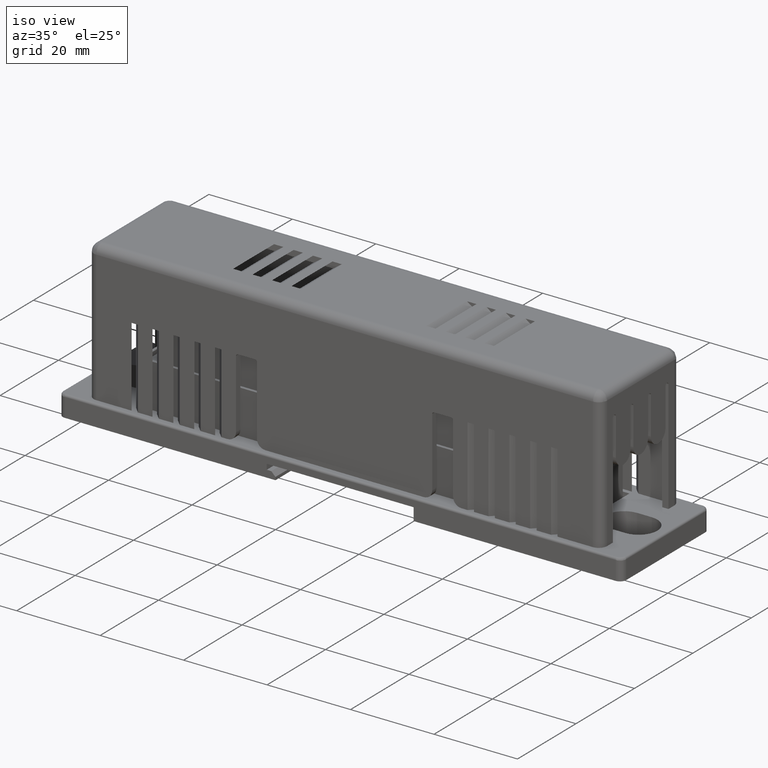
[diagram: clean part render]
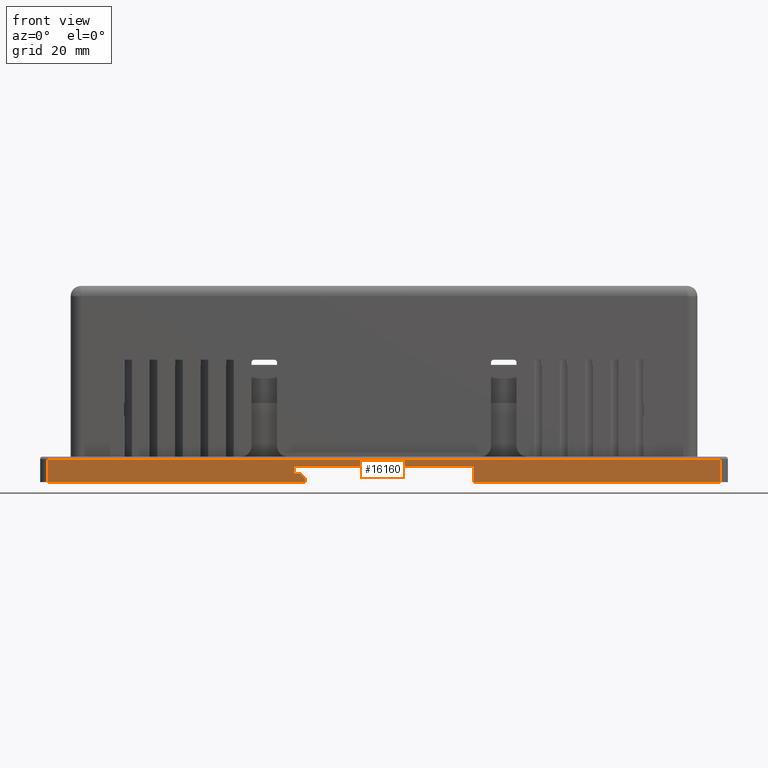
[diagram: tour spotlight — one face highlighted and labeled with its STEP entity id]
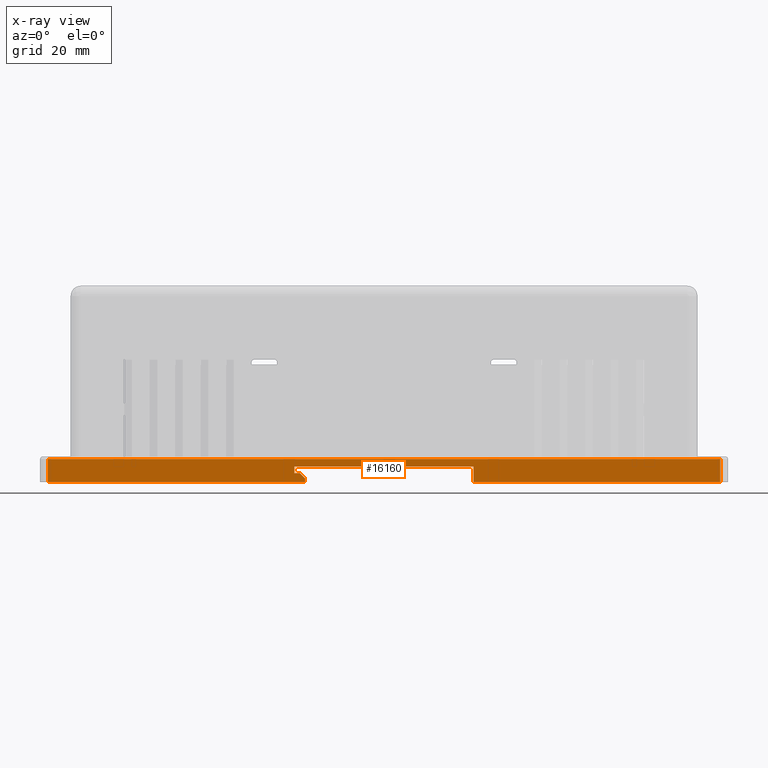
[diagram: x-ray of the same camera — body ghosted, this tour face saturated]
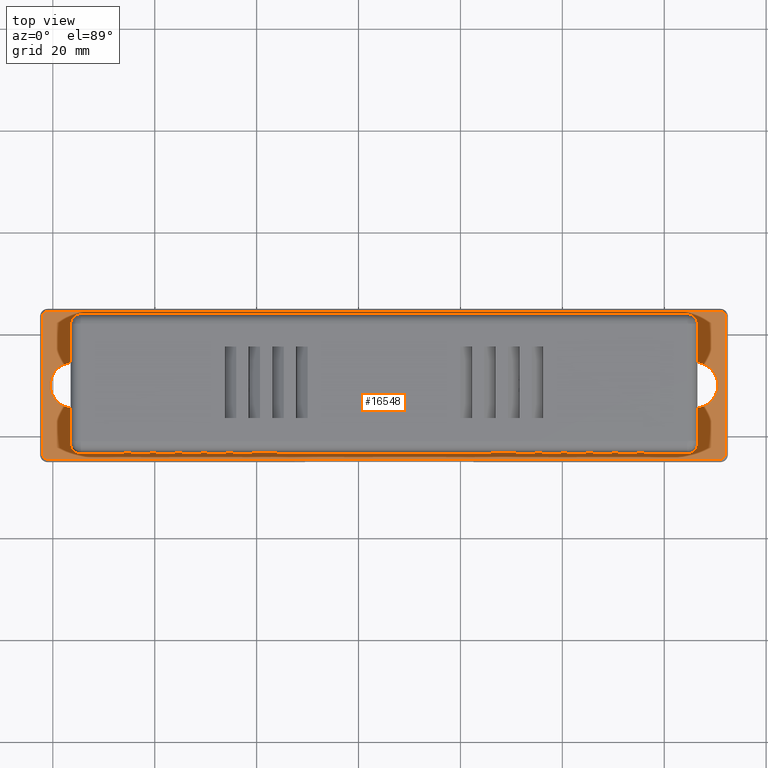
[diagram: tour spotlight — one face highlighted and labeled with its STEP entity id]
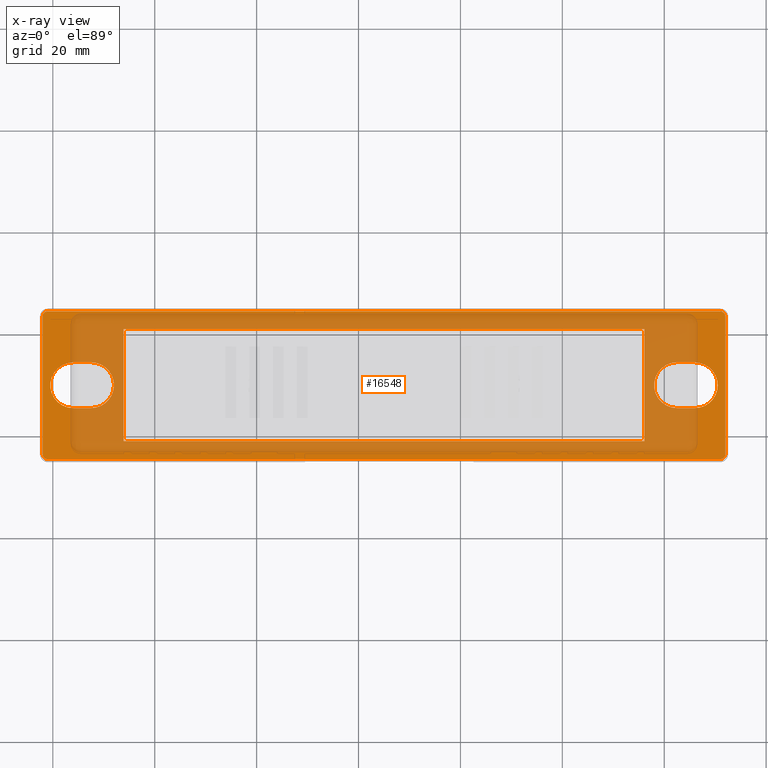
[diagram: x-ray of the same camera — body ghosted, this tour face saturated]
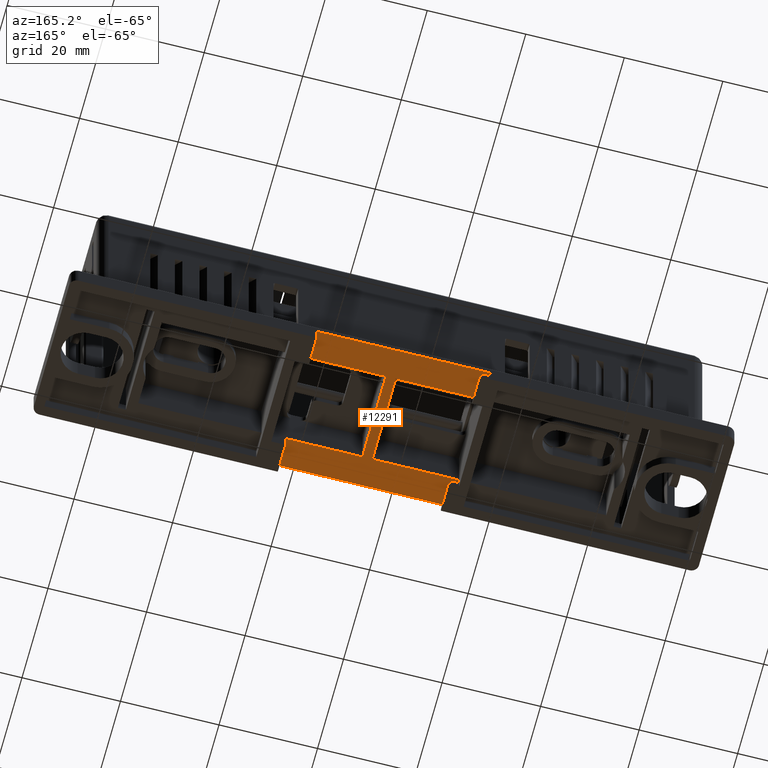
[diagram: tour spotlight — one face highlighted and labeled with its STEP entity id]
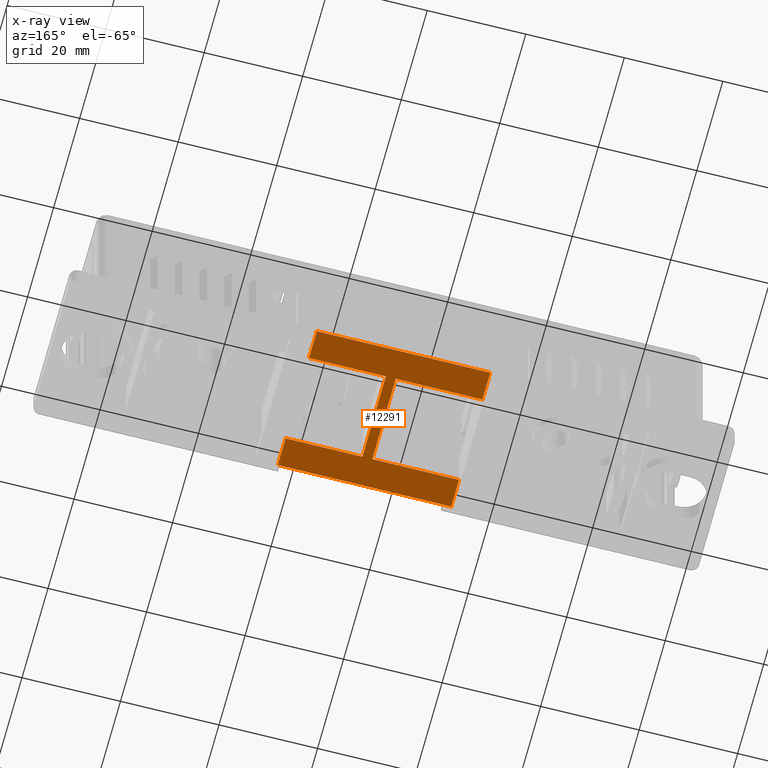
[diagram: x-ray of the same camera — body ghosted, this tour face saturated]
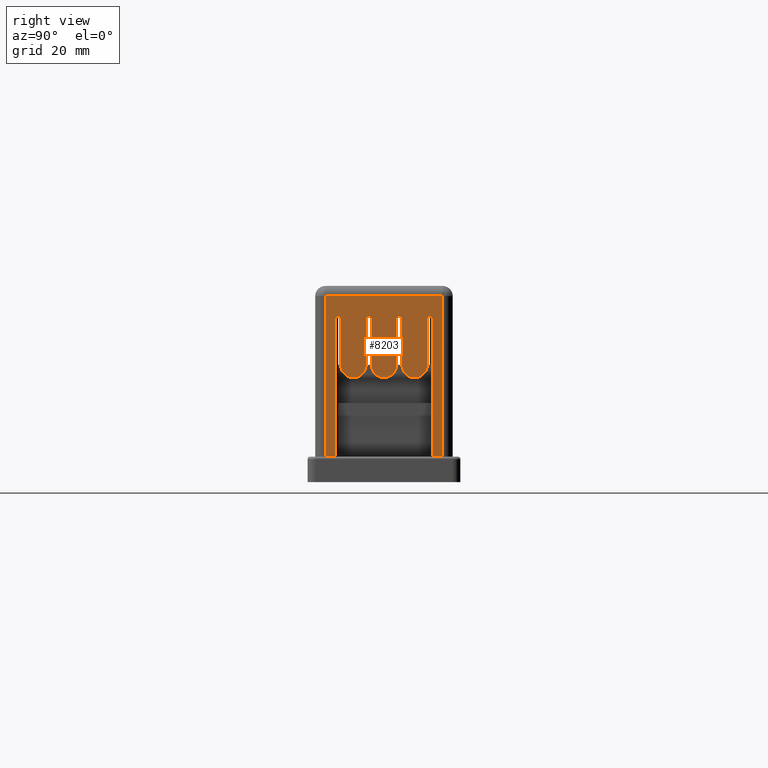
[diagram: tour spotlight — one face highlighted and labeled with its STEP entity id]
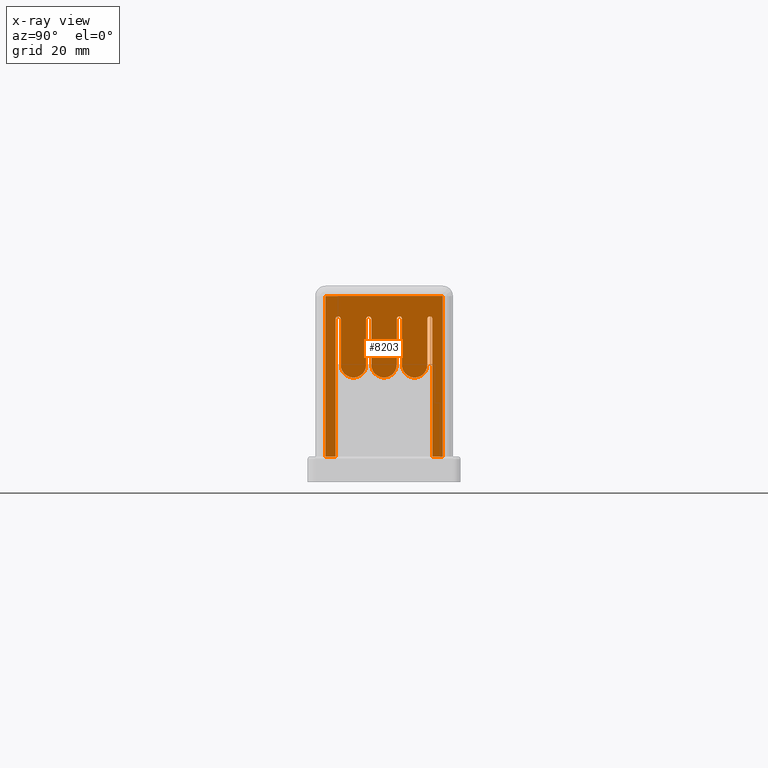
[diagram: x-ray of the same camera — body ghosted, this tour face saturated]
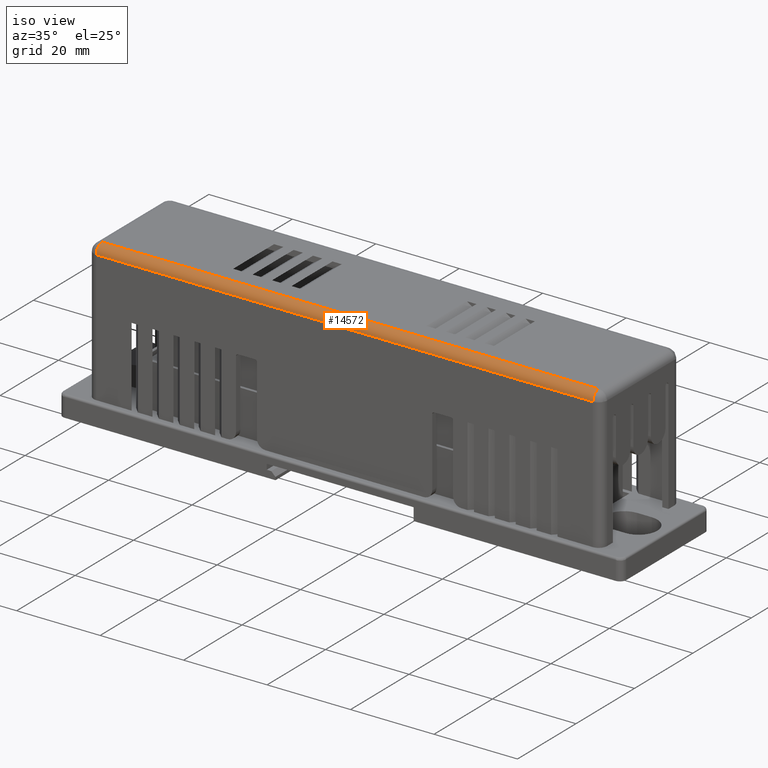
[diagram: tour spotlight — one face highlighted and labeled with its STEP entity id]
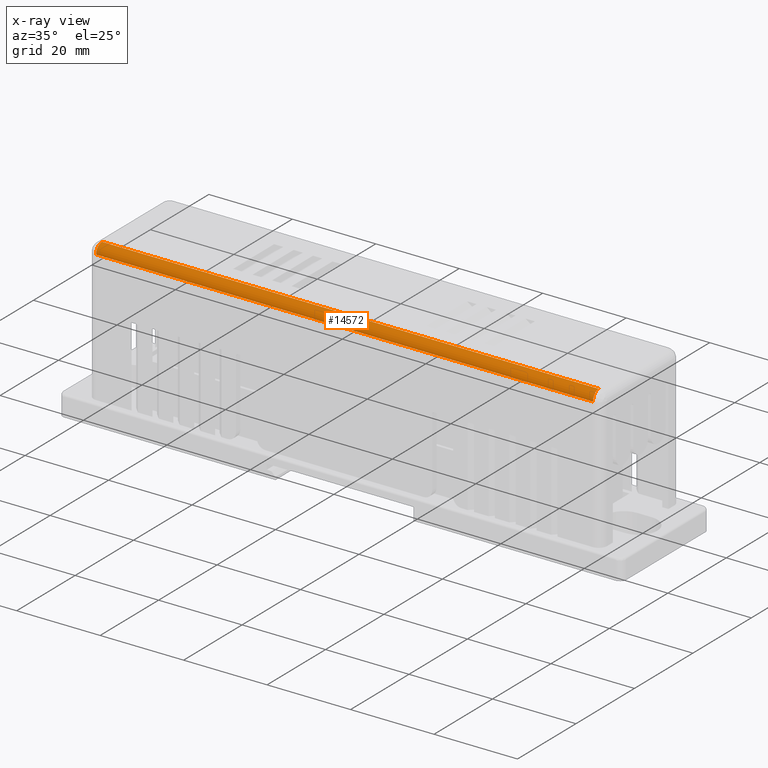
[diagram: x-ray of the same camera — body ghosted, this tour face saturated]
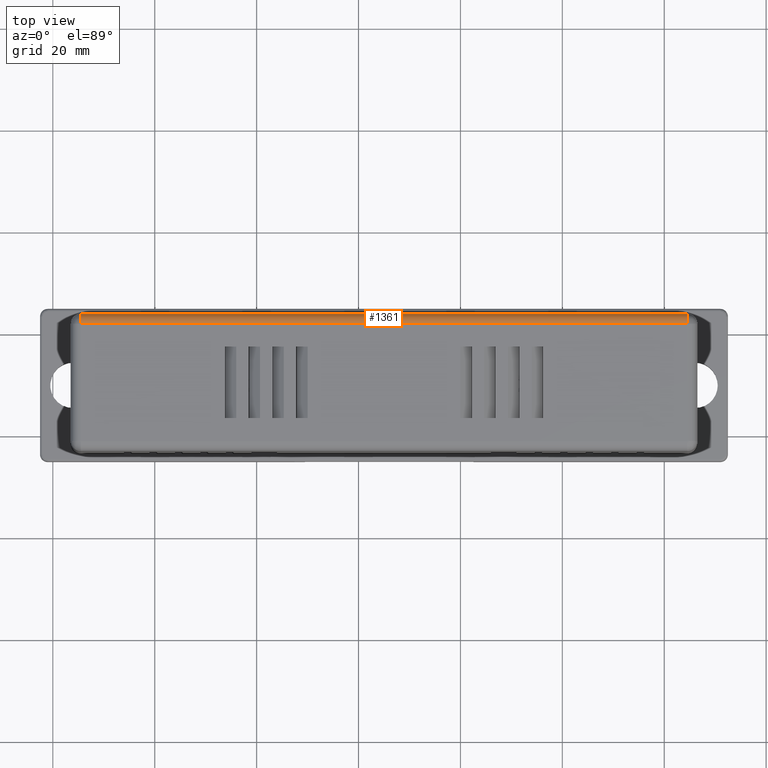
[diagram: tour spotlight — one face highlighted and labeled with its STEP entity id]
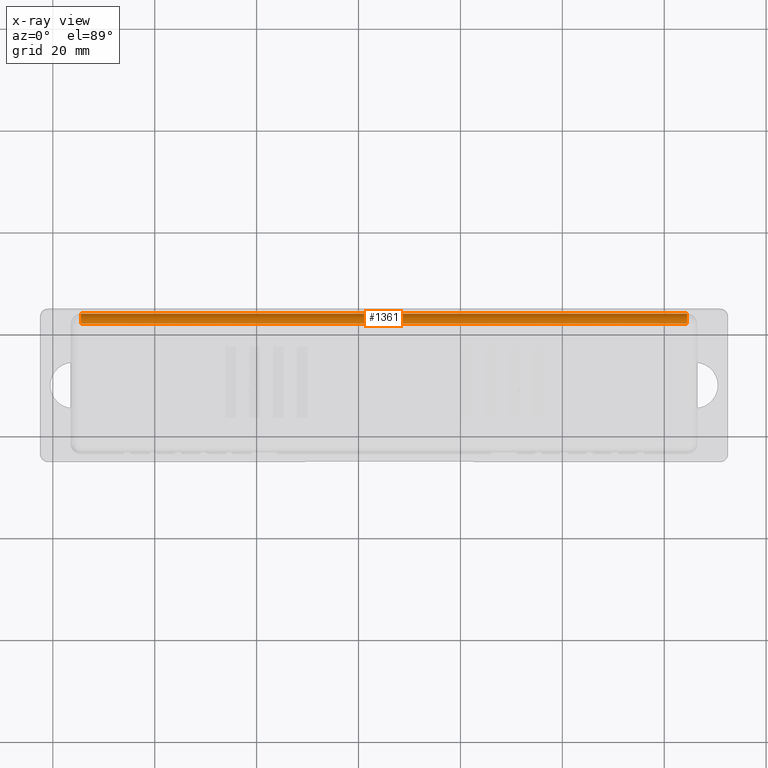
[diagram: x-ray of the same camera — body ghosted, this tour face saturated]
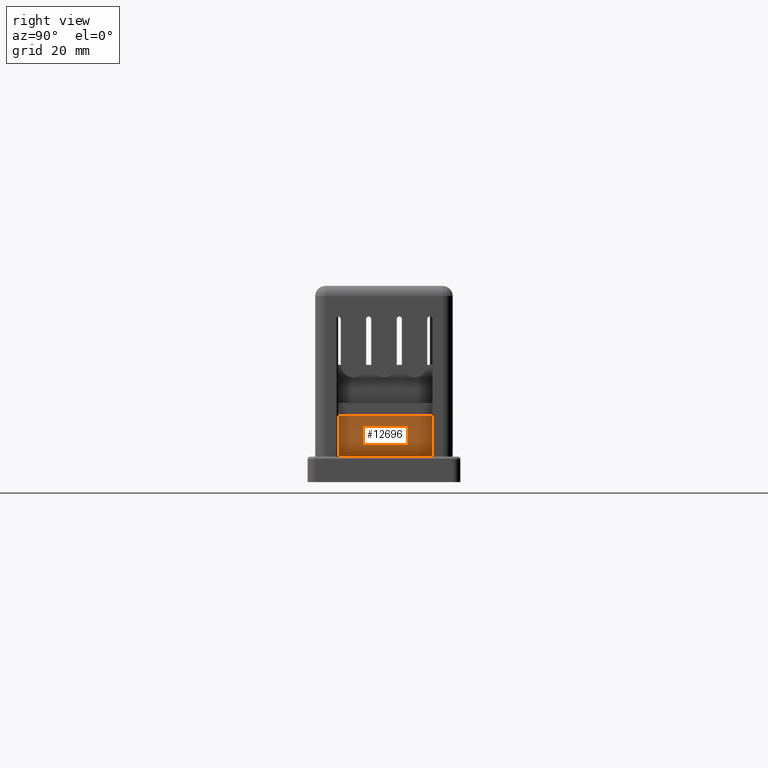
[diagram: tour spotlight — one face highlighted and labeled with its STEP entity id]
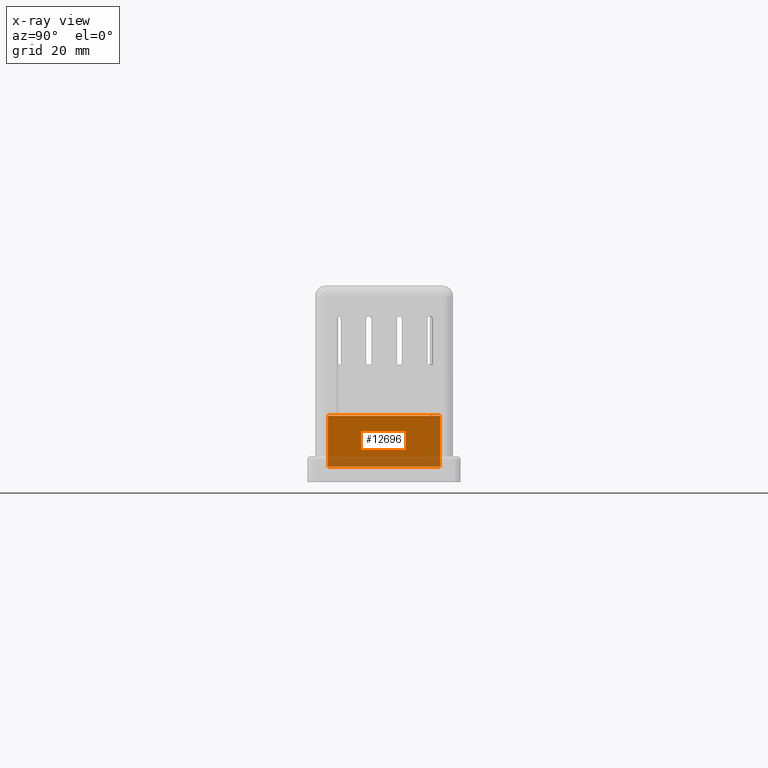
[diagram: x-ray of the same camera — body ghosted, this tour face saturated]
A machine part: a face-by-face anatomy tour. The part has 505 B-rep faces; the first image is the clean iso view, then the 7 largest visible faces are spotlighted one at a time (largest first), each with its STEP entity span.

Face 1 — front view, entity #16160. An x-ray twin of the same camera follows (body ghosted, this face saturated) — the face is partly hidden behind the body. In plain terms, the highlighted planar face has unit normal (0, -1, 0).
Definition (entity closure, byte-faithful):
#65 = VECTOR ( 'NONE', #8502, 39.37007874015748143 ) ;
#494 = EDGE_CURVE ( 'NONE', #14447, #9129, #8691, .T. ) ;
#581 = EDGE_CURVE ( 'NONE', #8562, #11047, #6500, .T. ) ;
#590 = VERTEX_POINT ( 'NONE', #10744 ) ;
#940 = CARTESIAN_POINT ( 'NONE',  ( 4.370078740157480546, -0.1968503937007874127, -0.5905511811023621549 ) ) ;
#1395 = DIRECTION ( 'NONE',  ( -1.000000000000000000, 0.000000000000000000, -0.000000000000000000 ) ) ;
#1521 = VERTEX_POINT ( 'NONE', #10956 ) ;
#1759 = ORIENTED_EDGE ( 'NONE', *, *, #14558, .T. ) ;
#1925 = CARTESIAN_POINT ( 'NONE',  ( 1.122047244094488194, -0.1968503937007874127, -0.5236220472440945573 ) ) ;
#2107 = EDGE_CURVE ( 'NONE', #590, #5457, #8753, .T. ) ;
#2194 = DIRECTION ( 'NONE',  ( -0.000000000000000000, 0.000000000000000000, 1.000000000000000000 ) ) ;
#2380 = ORIENTED_EDGE ( 'NONE', *, *, #2107, .F. ) ;
#2794 = VECTOR ( 'NONE', #1395, 39.37007874015748143 ) ;
#2918 = EDGE_CURVE ( 'NONE', #3536, #9129, #12279, .T. ) ;
#3193 = DIRECTION ( 'NONE',  ( 1.000000000000000000, 0.000000000000000000, 0.000000000000000000 ) ) ;
#3423 = CARTESIAN_POINT ( 'NONE',  ( 1.161417322834645827, -0.1968503937007874127, -0.5629921259842519676 ) ) ;
#3536 = VERTEX_POINT ( 'NONE', #12278 ) ;
#3647 = CARTESIAN_POINT ( 'NONE',  ( 2.464566929133858331, -0.1968503937007873850, -0.5905511811023621549 ) ) ;
#3808 = CARTESIAN_POINT ( 'NONE',  ( 4.370078740157480546, -0.1968503937007874682, -0.4133858267716535861 ) ) ;
#4136 = LINE ( 'NONE', #14383, #14785 ) ;
#4460 = CARTESIAN_POINT ( 'NONE',  ( 1.771653543307086576, -0.1968503937007874127, -0.5905511811023621549 ) ) ;
#4777 = CARTESIAN_POINT ( 'NONE',  ( 1.161417322834645827, -0.1968503937007874127, -0.5905511811023621549 ) ) ;
#4789 = DIRECTION ( 'NONE',  ( 0.000000000000000000, -0.000000000000000000, -1.000000000000000000 ) ) ;
#4855 = DIRECTION ( 'NONE',  ( -0.000000000000000000, 0.000000000000000000, 1.000000000000000000 ) ) ;
#4998 = EDGE_CURVE ( 'NONE', #1521, #8562, #12431, .T. ) ;
#5137 = DIRECTION ( 'NONE',  ( 1.000000000000000000, -0.000000000000000000, -0.000000000000000000 ) ) ;
#5457 = VERTEX_POINT ( 'NONE', #3808 ) ;
#5521 = CARTESIAN_POINT ( 'NONE',  ( 4.370078740157480546, -0.1968503937007873850, -0.5905511811023621549 ) ) ;
#5651 = CARTESIAN_POINT ( 'NONE',  ( 1.078740157480314821, -0.1968503937007874127, -0.4724409448818898682 ) ) ;
#5764 = VECTOR ( 'NONE', #4855, 39.37007874015748143 ) ;
#6228 = CARTESIAN_POINT ( 'NONE',  ( 1.771653543307086576, -0.1968503937007874405, -0.4133858267716535861 ) ) ;
#6229 = LINE ( 'NONE', #940, #15322 ) ;
#6433 = EDGE_LOOP ( 'NONE', ( #16497, #16146, #1759, #2380, #11165, #7819, #8847, #15618, #14576, #7354, #13835 ) ) ;
#6484 = LINE ( 'NONE', #14209, #9708 ) ;
#6500 = LINE ( 'NONE', #1925, #10177 ) ;
#6550 = CARTESIAN_POINT ( 'NONE',  ( 1.122047244094488194, -0.1968503937007874127, -0.5236220472440945573 ) ) ;
#6659 = EDGE_CURVE ( 'NONE', #1521, #15088, #11388, .T. ) ;
#6822 = LINE ( 'NONE', #15805, #10496 ) ;
#7277 = AXIS2_PLACEMENT_3D ( 'NONE', #4460, #9585, #4789 ) ;
#7354 = ORIENTED_EDGE ( 'NONE', *, *, #13573, .T. ) ;
#7819 = ORIENTED_EDGE ( 'NONE', *, *, #6659, .F. ) ;
#8329 = DIRECTION ( 'NONE',  ( -0.000000000000000000, 0.000000000000000000, 1.000000000000000000 ) ) ;
#8502 = DIRECTION ( 'NONE',  ( 0.000000000000000000, -0.000000000000000000, -1.000000000000000000 ) ) ;
#8562 = VERTEX_POINT ( 'NONE', #3423 ) ;
#8691 = LINE ( 'NONE', #13884, #9415 ) ;
#8753 = LINE ( 'NONE', #6228, #9835 ) ;
#8847 = ORIENTED_EDGE ( 'NONE', *, *, #4998, .T. ) ;
#8906 = CARTESIAN_POINT ( 'NONE',  ( -0.8267716535433072833, -0.1968503937007873850, -0.5905511811023621549 ) ) ;
#9129 = VERTEX_POINT ( 'NONE', #3647 ) ;
#9415 = VECTOR ( 'NONE', #13808, 39.37007874015748143 ) ;
#9585 = DIRECTION ( 'NONE',  ( 0.000000000000000000, -1.000000000000000000, 0.000000000000000000 ) ) ;
#9708 = VECTOR ( 'NONE', #11429, 39.37007874015748143 ) ;
#9835 = VECTOR ( 'NONE', #5137, 39.37007874015748143 ) ;
#10177 = VECTOR ( 'NONE', #10832, 39.37007874015748854 ) ;
#10210 = CARTESIAN_POINT ( 'NONE',  ( 1.771653543307086576, -0.1968503937007873850, -0.5905511811023621549 ) ) ;
#10429 = CARTESIAN_POINT ( 'NONE',  ( 1.078740157480314821, -0.1968503937007874127, -0.5236220472440945573 ) ) ;
#10496 = VECTOR ( 'NONE', #8329, 39.37007874015748143 ) ;
#10519 = DIRECTION ( 'NONE',  ( 1.000000000000000000, 0.000000000000000000, -0.000000000000000000 ) ) ;
#10584 = EDGE_CURVE ( 'NONE', #590, #15088, #6484, .T. ) ;
#10606 = VERTEX_POINT ( 'NONE', #10429 ) ;
#10744 = CARTESIAN_POINT ( 'NONE',  ( -0.8267716535433071723, -0.1968503937007874405, -0.4133858267716535861 ) ) ;
#10832 = DIRECTION ( 'NONE',  ( -0.7071067811865479058, 0.000000000000000000, 0.7071067811865469066 ) ) ;
#10956 = CARTESIAN_POINT ( 'NONE',  ( 1.161417322834645827, -0.1968503937007873850, -0.5905511811023621549 ) ) ;
#11047 = VERTEX_POINT ( 'NONE', #6550 ) ;
#11165 = ORIENTED_EDGE ( 'NONE', *, *, #10584, .T. ) ;
#11254 = CARTESIAN_POINT ( 'NONE',  ( 2.464566929133858331, -0.1968503937007874127, -0.5905511811023621549 ) ) ;
#11388 = LINE ( 'NONE', #10210, #2794 ) ;
#11429 = DIRECTION ( 'NONE',  ( 0.000000000000000000, -0.000000000000000000, -1.000000000000000000 ) ) ;
#11944 = LINE ( 'NONE', #14632, #13212 ) ;
#12278 = CARTESIAN_POINT ( 'NONE',  ( 2.464566929133858331, -0.1968503937007874405, -0.4724409448818898682 ) ) ;
#12279 = LINE ( 'NONE', #11254, #65 ) ;
#12369 = EDGE_CURVE ( 'NONE', #14456, #3536, #11944, .T. ) ;
#12431 = LINE ( 'NONE', #4777, #5764 ) ;
#13116 = PLANE ( 'NONE',  #7277 ) ;
#13212 = VECTOR ( 'NONE', #3193, 39.37007874015748143 ) ;
#13573 = EDGE_CURVE ( 'NONE', #10606, #14456, #6822, .T. ) ;
#13808 = DIRECTION ( 'NONE',  ( -1.000000000000000000, 0.000000000000000000, -0.000000000000000000 ) ) ;
#13835 = ORIENTED_EDGE ( 'NONE', *, *, #12369, .T. ) ;
#13884 = CARTESIAN_POINT ( 'NONE',  ( 1.771653543307086576, -0.1968503937007873850, -0.5905511811023621549 ) ) ;
#14209 = CARTESIAN_POINT ( 'NONE',  ( -0.8267716535433072833, -0.1968503937007874127, -0.5905511811023621549 ) ) ;
#14383 = CARTESIAN_POINT ( 'NONE',  ( 1.072834645669291431, -0.1968503937007874127, -0.5236220472440945573 ) ) ;
#14447 = VERTEX_POINT ( 'NONE', #5521 ) ;
#14456 = VERTEX_POINT ( 'NONE', #5651 ) ;
#14558 = EDGE_CURVE ( 'NONE', #14447, #5457, #6229, .T. ) ;
#14576 = ORIENTED_EDGE ( 'NONE', *, *, #15891, .F. ) ;
#14632 = CARTESIAN_POINT ( 'NONE',  ( 1.771653543307086576, -0.1968503937007874127, -0.4724409448818898127 ) ) ;
#14785 = VECTOR ( 'NONE', #10519, 39.37007874015748143 ) ;
#15088 = VERTEX_POINT ( 'NONE', #8906 ) ;
#15322 = VECTOR ( 'NONE', #2194, 39.37007874015748143 ) ;
#15618 = ORIENTED_EDGE ( 'NONE', *, *, #581, .T. ) ;
#15805 = CARTESIAN_POINT ( 'NONE',  ( 1.078740157480315043, -0.1968503937007874127, -0.5905511811023621549 ) ) ;
#15891 = EDGE_CURVE ( 'NONE', #10606, #11047, #4136, .T. ) ;
#15970 = FACE_OUTER_BOUND ( 'NONE', #6433, .T. ) ;
#16146 = ORIENTED_EDGE ( 'NONE', *, *, #494, .F. ) ;
#16160 = ADVANCED_FACE ( 'NONE', ( #15970 ), #13116, .T. ) ;
#16497 = ORIENTED_EDGE ( 'NONE', *, *, #2918, .T. ) ;

Face 2 — top view, entity #16548. An x-ray twin of the same camera follows (body ghosted, this face saturated) — the face is partly hidden behind the body. In plain terms, the highlighted planar face has unit normal (0, 0, 1).
Definition (entity closure, byte-faithful):
#30 = CIRCLE ( 'NONE', #10761, 0.1771653543307086798 ) ;
#87 = CARTESIAN_POINT ( 'NONE',  ( 4.035433070866142558, 0.3937007874015748254, -0.3937007874015748254 ) ) ;
#434 = CARTESIAN_POINT ( 'NONE',  ( -0.8661417322834648047, 0.9251968503937008093, -0.3937007874015748254 ) ) ;
#570 = CARTESIAN_POINT ( 'NONE',  ( -0.8267716535433072833, -0.1771653543307086798, -0.3937007874015748254 ) ) ;
#616 = CARTESIAN_POINT ( 'NONE',  ( 4.370078740157481434, -0.1771653543307086798, -0.3937007874015748254 ) ) ;
#815 = CARTESIAN_POINT ( 'NONE',  ( -0.8498341117175950421, -0.1771653543307086798, -0.3937007874015747699 ) ) ;
#863 = AXIS2_PLACEMENT_3D ( 'NONE', #3422, #2318, #13667 ) ;
#1006 = CARTESIAN_POINT ( 'NONE',  ( -0.4921259842519685179, 0.3937007874015748254, -0.3937007874015748254 ) ) ;
#1088 = AXIS2_PLACEMENT_3D ( 'NONE', #10595, #12024, #2948 ) ;
#1094 = VECTOR ( 'NONE', #3196, 39.37007874015748143 ) ;
#1185 = CARTESIAN_POINT ( 'NONE',  ( 1.771653543307086576, 0.5708661417322835607, -0.3937007874015748254 ) ) ;
#1198 = VECTOR ( 'NONE', #8670, 39.37007874015748143 ) ;
#1340 = EDGE_CURVE ( 'NONE', #10694, #6255, #10376, .T. ) ;
#1408 = DIRECTION ( 'NONE',  ( -1.000000000000000000, -0.000000000000000000, 0.000000000000000000 ) ) ;
#1578 = VERTEX_POINT ( 'NONE', #7260 ) ;
#1606 = CARTESIAN_POINT ( 'NONE',  ( -0.1771653543307086798, -0.03937007874015743814, -0.3937007874015748254 ) ) ;
#1659 = ORIENTED_EDGE ( 'NONE', *, *, #7776, .F. ) ;
#1697 = LINE ( 'NONE', #10678, #1094 ) ;
#1895 = VECTOR ( 'NONE', #13443, 39.37007874015748143 ) ;
#1898 = ORIENTED_EDGE ( 'NONE', *, *, #10020, .F. ) ;
#1953 = DIRECTION ( 'NONE',  ( 1.000000000000000000, 0.000000000000000000, -0.000000000000000000 ) ) ;
#2074 = EDGE_CURVE ( 'NONE', #9567, #10500, #2519, .T. ) ;
#2076 = AXIS2_PLACEMENT_3D ( 'NONE', #13898, #8863, #14070 ) ;
#2113 = DIRECTION ( 'NONE',  ( -0.000000000000000000, 1.000000000000000000, 0.000000000000000000 ) ) ;
#2121 = EDGE_CURVE ( 'NONE', #14702, #12255, #2351, .T. ) ;
#2274 = DIRECTION ( 'NONE',  ( 1.000000000000000000, 0.000000000000000000, -0.000000000000000000 ) ) ;
#2279 = CARTESIAN_POINT ( 'NONE',  ( -0.6299212598425196763, 0.5708661417322835607, -0.3937007874015748254 ) ) ;
#2309 = VERTEX_POINT ( 'NONE', #8165 ) ;
#2318 = DIRECTION ( 'NONE',  ( 0.000000000000000000, 0.000000000000000000, 1.000000000000000000 ) ) ;
#2351 = LINE ( 'NONE', #6392, #13336 ) ;
#2439 = CARTESIAN_POINT ( 'NONE',  ( 4.370078740157481434, -0.1771653543307086798, -0.3937007874015748254 ) ) ;
#2448 = VERTEX_POINT ( 'NONE', #6351 ) ;
#2519 = LINE ( 'NONE', #1185, #6623 ) ;
#2579 = VECTOR ( 'NONE', #4580, 39.37007874015748143 ) ;
#2630 = ORIENTED_EDGE ( 'NONE', *, *, #9169, .T. ) ;
#2713 = CIRCLE ( 'NONE', #7011, 0.1771653543307088186 ) ;
#2744 = CARTESIAN_POINT ( 'NONE',  ( 4.035433070866142558, 0.2165354330708661457, -0.3937007874015748254 ) ) ;
#2871 = VECTOR ( 'NONE', #10520, 39.37007874015748143 ) ;
#2948 = DIRECTION ( 'NONE',  ( 1.000000000000000000, 0.000000000000000000, 0.000000000000000000 ) ) ;
#2969 = CARTESIAN_POINT ( 'NONE',  ( 4.393141198331768749, -0.1771653543307083745, -0.3937007874015748254 ) ) ;
#3049 = CARTESIAN_POINT ( 'NONE',  ( -0.8498341117175950421, 0.9645669291338584417, -0.3937007874015748810 ) ) ;
#3180 = ORIENTED_EDGE ( 'NONE', *, *, #11349, .T. ) ;
#3196 = DIRECTION ( 'NONE',  ( 1.000000000000000000, 0.000000000000000000, -0.000000000000000000 ) ) ;
#3308 = VERTEX_POINT ( 'NONE', #8331 ) ;
#3422 = CARTESIAN_POINT ( 'NONE',  ( 1.771653543307086576, 0.3937007874015748254, -0.3937007874015748254 ) ) ;
#3428 = ORIENTED_EDGE ( 'NONE', *, *, #4489, .F. ) ;
#3626 = CARTESIAN_POINT ( 'NONE',  ( -0.2401574803149601478, 0.3937007874015748254, -0.3937007874015748254 ) ) ;
#3921 = DIRECTION ( 'NONE',  ( 1.000000000000000000, 0.000000000000000000, 0.000000000000000000 ) ) ;
#3922 = CARTESIAN_POINT ( 'NONE',  ( -0.8661417322834648047, -0.1377952755905511584, -0.3937007874015748254 ) ) ;
#4007 = ORIENTED_EDGE ( 'NONE', *, *, #14928, .T. ) ;
#4078 = VECTOR ( 'NONE', #1953, 39.37007874015748143 ) ;
#4472 = VERTEX_POINT ( 'NONE', #5809 ) ;
#4489 = EDGE_CURVE ( 'NONE', #12383, #3308, #12729, .T. ) ;
#4517 = ORIENTED_EDGE ( 'NONE', *, *, #7128, .T. ) ;
#4580 = DIRECTION ( 'NONE',  ( -1.000000000000000000, -0.000000000000000000, -0.000000000000000000 ) ) ;
#4640 = VECTOR ( 'NONE', #11905, 39.37007874015748143 ) ;
#4802 = DIRECTION ( 'NONE',  ( 1.000000000000000000, 0.000000000000000000, -0.000000000000000000 ) ) ;
#4840 = FACE_BOUND ( 'NONE', #15936, .T. ) ;
#4864 = CARTESIAN_POINT ( 'NONE',  ( -0.6299212598425196763, 0.2165354330708661457, -0.3937007874015748254 ) ) ;
#4991 = EDGE_CURVE ( 'NONE', #12383, #14294, #10062, .T. ) ;
#5012 = CARTESIAN_POINT ( 'NONE',  ( -0.4921259842519685179, 0.3937007874015748254, -0.3937007874015748254 ) ) ;
#5022 = VECTOR ( 'NONE', #1408, 39.37007874015748143 ) ;
#5043 = LINE ( 'NONE', #15289, #1198 ) ;
#5048 = CARTESIAN_POINT ( 'NONE',  ( -0.8267716535433072833, -0.1771653543307086798, -0.3937007874015748254 ) ) ;
#5050 = CARTESIAN_POINT ( 'NONE',  ( -0.2401574803149602311, -0.03937007874015745895, -0.3937007874015748254 ) ) ;
#5113 = EDGE_LOOP ( 'NONE', ( #14949, #1898, #14587, #1659, #6303, #15109, #11425, #12666 ) ) ;
#5209 = CARTESIAN_POINT ( 'NONE',  ( -0.4921259842519685179, 0.2165354330708661457, -0.3937007874015748254 ) ) ;
#5406 = CARTESIAN_POINT ( 'NONE',  ( -0.1771653543307086798, 0.8267716535433071723, -0.3937007874015748254 ) ) ;
#5489 = CARTESIAN_POINT ( 'NONE',  ( 1.771653543307086576, 0.9645669291338583307, -0.3937007874015748254 ) ) ;
#5497 = LINE ( 'NONE', #9603, #4078 ) ;
#5541 = VERTEX_POINT ( 'NONE', #5406 ) ;
#5565 = CARTESIAN_POINT ( 'NONE',  ( -0.8661417322834648047, 0.9482593085679884570, -0.3937007874015748810 ) ) ;
#5598 = EDGE_CURVE ( 'NONE', #10694, #3308, #9106, .T. ) ;
#5809 = CARTESIAN_POINT ( 'NONE',  ( 4.173228346456692606, 0.2165354330708661457, -0.3937007874015748254 ) ) ;
#5839 = VERTEX_POINT ( 'NONE', #7484 ) ;
#5840 = EDGE_CURVE ( 'NONE', #15266, #6370, #5043, .T. ) ;
#5888 = CARTESIAN_POINT ( 'NONE',  ( -0.8661417322834648047, 0.9251968503937008093, -0.3937007874015748254 ) ) ;
#6131 = DIRECTION ( 'NONE',  ( -0.000000000000000000, -0.000000000000000000, -1.000000000000000000 ) ) ;
#6255 = VERTEX_POINT ( 'NONE', #12508 ) ;
#6303 = ORIENTED_EDGE ( 'NONE', *, *, #5840, .T. ) ;
#6349 = CARTESIAN_POINT ( 'NONE',  ( 4.370078740157479658, 0.9645669291338583307, -0.3937007874015748254 ) ) ;
#6351 = CARTESIAN_POINT ( 'NONE',  ( 4.035433070866142558, 0.5708661417322835607, -0.3937007874015748254 ) ) ;
#6367 = CIRCLE ( 'NONE', #9856, 0.1771653543307086798 ) ;
#6370 = VERTEX_POINT ( 'NONE', #6371 ) ;
#6371 = CARTESIAN_POINT ( 'NONE',  ( 3.783464566929133799, -0.03937007874015747977, -0.3937007874015748254 ) ) ;
#6391 = ORIENTED_EDGE ( 'NONE', *, *, #12380, .T. ) ;
#6392 = CARTESIAN_POINT ( 'NONE',  ( 1.771653543307086576, -0.1771653543307086798, -0.3937007874015748254 ) ) ;
#6532 = DIRECTION ( 'NONE',  ( -0.000000000000000000, -0.000000000000000000, -1.000000000000000000 ) ) ;
#6623 = VECTOR ( 'NONE', #4802, 39.37007874015748143 ) ;
#6670 = ORIENTED_EDGE ( 'NONE', *, *, #11990, .T. ) ;
#6691 = CARTESIAN_POINT ( 'NONE',  ( -0.2401574803149602311, 0.8267716535433071723, -0.3937007874015748254 ) ) ;
#6733 = DIRECTION ( 'NONE',  ( -0.000000000000000000, -0.000000000000000000, -1.000000000000000000 ) ) ;
#6820 = LINE ( 'NONE', #1606, #2871 ) ;
#6991 = CARTESIAN_POINT ( 'NONE',  ( 4.409448818897637956, -0.1377952755905511584, -0.3937007874015748254 ) ) ;
#7011 = AXIS2_PLACEMENT_3D ( 'NONE', #87, #13932, #16537 ) ;
#7128 = EDGE_CURVE ( 'NONE', #15166, #14985, #10071, .T. ) ;
#7260 = CARTESIAN_POINT ( 'NONE',  ( 4.409448818897637956, -0.1377952755905511584, -0.3937007874015748254 ) ) ;
#7376 = FACE_BOUND ( 'NONE', #11526, .T. ) ;
#7422 = ORIENTED_EDGE ( 'NONE', *, *, #4991, .T. ) ;
#7440 = EDGE_CURVE ( 'NONE', #14702, #14294, #13902, .T. ) ;
#7484 = CARTESIAN_POINT ( 'NONE',  ( 4.350393700787401841, 0.3937007874015748254, -0.3937007874015748254 ) ) ;
#7693 = VERTEX_POINT ( 'NONE', #13154 ) ;
#7776 = EDGE_CURVE ( 'NONE', #15266, #10948, #8288, .T. ) ;
#7780 = CARTESIAN_POINT ( 'NONE',  ( 4.393141198331767860, 0.9645669291338587747, -0.3937007874015748254 ) ) ;
#8150 = EDGE_CURVE ( 'NONE', #12318, #15422, #6820, .T. ) ;
#8165 = CARTESIAN_POINT ( 'NONE',  ( -0.2401574803149602033, 0.8267716535433071723, -0.3937007874015748254 ) ) ;
#8288 = LINE ( 'NONE', #15838, #2579 ) ;
#8331 = CARTESIAN_POINT ( 'NONE',  ( -0.8267716535433071723, 0.9645669291338583307, -0.3937007874015748254 ) ) ;
#8348 = VECTOR ( 'NONE', #2113, 39.37007874015748143 ) ;
#8472 = FACE_OUTER_BOUND ( 'NONE', #13600, .T. ) ;
#8670 = DIRECTION ( 'NONE',  ( 0.000000000000000000, -1.000000000000000000, -0.000000000000000000 ) ) ;
#8709 = EDGE_CURVE ( 'NONE', #9372, #15422, #12656, .T. ) ;
#8761 = EDGE_CURVE ( 'NONE', #9443, #15166, #6367, .T. ) ;
#8790 = CARTESIAN_POINT ( 'NONE',  ( 4.409448818897637956, 0.9251968503937008093, -0.3937007874015748254 ) ) ;
#8863 = DIRECTION ( 'NONE',  ( -0.000000000000000000, -0.000000000000000000, -1.000000000000000000 ) ) ;
#8963 = DIRECTION ( 'NONE',  ( -0.000000000000000000, 1.000000000000000000, 0.000000000000000000 ) ) ;
#8989 = DIRECTION ( 'NONE',  ( -1.000000000000000000, -0.000000000000000000, 0.000000000000000000 ) ) ;
#9106 = LINE ( 'NONE', #5489, #12202 ) ;
#9145 = ORIENTED_EDGE ( 'NONE', *, *, #8761, .T. ) ;
#9169 = EDGE_CURVE ( 'NONE', #7693, #5839, #10128, .T. ) ;
#9213 =( BOUNDED_CURVE ( )  B_SPLINE_CURVE ( 3, ( #6991, #12122, #2969, #616 ),
 .UNSPECIFIED., .F., .T. ) 
 B_SPLINE_CURVE_WITH_KNOTS ( ( 4, 4 ),
 ( 0.000000000000000000, 1.000000000000000000 ),
 .UNSPECIFIED. ) 
 CURVE ( )  GEOMETRIC_REPRESENTATION_ITEM ( )  RATIONAL_B_SPLINE_CURVE ( ( 1.000000000000000000, 0.8047378541243683792, 0.8047378541243683792, 1.000000000000000000 ) ) 
 REPRESENTATION_ITEM ( '' )  );
#9372 = VERTEX_POINT ( 'NONE', #15502 ) ;
#9443 = VERTEX_POINT ( 'NONE', #15912 ) ;
#9492 = ORIENTED_EDGE ( 'NONE', *, *, #5598, .T. ) ;
#9567 = VERTEX_POINT ( 'NONE', #2279 ) ;
#9603 = CARTESIAN_POINT ( 'NONE',  ( 1.771653543307086576, 0.5708661417322835607, -0.3937007874015748254 ) ) ;
#9703 = CARTESIAN_POINT ( 'NONE',  ( 3.783464566929134243, 0.8267716535433071723, -0.3937007874015748254 ) ) ;
#9856 = AXIS2_PLACEMENT_3D ( 'NONE', #5012, #6532, #3921 ) ;
#9971 = PLANE ( 'NONE',  #863 ) ;
#10020 = EDGE_CURVE ( 'NONE', #5541, #2309, #10805, .T. ) ;
#10062 = LINE ( 'NONE', #10988, #12207 ) ;
#10069 = CARTESIAN_POINT ( 'NONE',  ( 3.720472440944881942, 0.8267716535433071723, -0.3937007874015748254 ) ) ;
#10071 = LINE ( 'NONE', #15276, #12510 ) ;
#10128 = CIRCLE ( 'NONE', #2076, 0.1771653543307088186 ) ;
#10352 = CARTESIAN_POINT ( 'NONE',  ( -0.6299212598425196763, 0.3937007874015748254, -0.3937007874015748254 ) ) ;
#10376 =( BOUNDED_CURVE ( )  B_SPLINE_CURVE ( 3, ( #6349, #7780, #11469, #8790 ),
 .UNSPECIFIED., .F., .T. ) 
 B_SPLINE_CURVE_WITH_KNOTS ( ( 4, 4 ),
 ( 0.000000000000000000, 1.000000000000000000 ),
 .UNSPECIFIED. ) 
 CURVE ( )  GEOMETRIC_REPRESENTATION_ITEM ( )  RATIONAL_B_SPLINE_CURVE ( ( 1.000000000000000000, 0.8047378541243617178, 0.8047378541243617178, 1.000000000000000000 ) ) 
 REPRESENTATION_ITEM ( '' )  );
#10474 = DIRECTION ( 'NONE',  ( -1.000000000000000000, -0.000000000000000000, -0.000000000000000000 ) ) ;
#10500 = VERTEX_POINT ( 'NONE', #15667 ) ;
#10520 = DIRECTION ( 'NONE',  ( 1.000000000000000000, 0.000000000000000000, -0.000000000000000000 ) ) ;
#10595 = CARTESIAN_POINT ( 'NONE',  ( 4.173228346456692606, 0.3937007874015748254, -0.3937007874015748254 ) ) ;
#10667 = ORIENTED_EDGE ( 'NONE', *, *, #7440, .F. ) ;
#10670 = ORIENTED_EDGE ( 'NONE', *, *, #13423, .T. ) ;
#10678 = CARTESIAN_POINT ( 'NONE',  ( 1.771653543307086576, 0.8267716535433071723, -0.3937007874015748254 ) ) ;
#10694 = VERTEX_POINT ( 'NONE', #11533 ) ;
#10761 = AXIS2_PLACEMENT_3D ( 'NONE', #1006, #6131, #14882 ) ;
#10805 = LINE ( 'NONE', #6691, #16405 ) ;
#10829 = ORIENTED_EDGE ( 'NONE', *, *, #15143, .T. ) ;
#10948 = VERTEX_POINT ( 'NONE', #10069 ) ;
#10988 = CARTESIAN_POINT ( 'NONE',  ( -0.8661417322834648047, 0.3937007874015748254, -0.3937007874015748254 ) ) ;
#11349 = EDGE_CURVE ( 'NONE', #1578, #6255, #16598, .T. ) ;
#11425 = ORIENTED_EDGE ( 'NONE', *, *, #8709, .T. ) ;
#11446 = EDGE_CURVE ( 'NONE', #9372, #6370, #15171, .T. ) ;
#11469 = CARTESIAN_POINT ( 'NONE',  ( 4.409448818897637956, 0.9482593085679886791, -0.3937007874015748254 ) ) ;
#11474 = CARTESIAN_POINT ( 'NONE',  ( 4.409448818897637956, 0.3937007874015748254, -0.3937007874015748254 ) ) ;
#11526 = EDGE_LOOP ( 'NONE', ( #4517, #10670, #16526, #14205, #9145 ) ) ;
#11533 = CARTESIAN_POINT ( 'NONE',  ( 4.370078740157479658, 0.9645669291338583307, -0.3937007874015748254 ) ) ;
#11565 = CARTESIAN_POINT ( 'NONE',  ( 1.771653543307086576, -0.03937007874015744507, -0.3937007874015748254 ) ) ;
#11842 = CIRCLE ( 'NONE', #16627, 0.1771653543307086798 ) ;
#11905 = DIRECTION ( 'NONE',  ( 1.000000000000000000, 0.000000000000000000, -0.000000000000000000 ) ) ;
#11990 = EDGE_CURVE ( 'NONE', #2448, #7693, #5497, .T. ) ;
#12021 = CARTESIAN_POINT ( 'NONE',  ( 1.771653543307086576, 0.2165354330708661457, -0.3937007874015748254 ) ) ;
#12024 = DIRECTION ( 'NONE',  ( -0.000000000000000000, -0.000000000000000000, -1.000000000000000000 ) ) ;
#12122 = CARTESIAN_POINT ( 'NONE',  ( 4.409448818897637956, -0.1608577337648385563, -0.3937007874015748254 ) ) ;
#12164 = CARTESIAN_POINT ( 'NONE',  ( -0.8661417322834648047, -0.1377952755905511584, -0.3937007874015748254 ) ) ;
#12202 = VECTOR ( 'NONE', #15728, 39.37007874015748143 ) ;
#12207 = VECTOR ( 'NONE', #12505, 39.37007874015748143 ) ;
#12255 = VERTEX_POINT ( 'NONE', #2439 ) ;
#12256 = ORIENTED_EDGE ( 'NONE', *, *, #14532, .F. ) ;
#12318 = VERTEX_POINT ( 'NONE', #5050 ) ;
#12380 = EDGE_CURVE ( 'NONE', #5839, #4472, #14561, .T. ) ;
#12383 = VERTEX_POINT ( 'NONE', #434 ) ;
#12505 = DIRECTION ( 'NONE',  ( 0.000000000000000000, -1.000000000000000000, -0.000000000000000000 ) ) ;
#12508 = CARTESIAN_POINT ( 'NONE',  ( 4.409448818897637956, 0.9251968503937008093, -0.3937007874015748254 ) ) ;
#12510 = VECTOR ( 'NONE', #8989, 39.37007874015748143 ) ;
#12517 = EDGE_CURVE ( 'NONE', #10500, #9443, #30, .T. ) ;
#12656 = LINE ( 'NONE', #11565, #5022 ) ;
#12666 = ORIENTED_EDGE ( 'NONE', *, *, #8150, .F. ) ;
#12729 =( BOUNDED_CURVE ( )  B_SPLINE_CURVE ( 3, ( #5888, #5565, #3049, #15726 ),
 .UNSPECIFIED., .F., .T. ) 
 B_SPLINE_CURVE_WITH_KNOTS ( ( 4, 4 ),
 ( 0.000000000000000000, 1.000000000000000000 ),
 .UNSPECIFIED. ) 
 CURVE ( )  GEOMETRIC_REPRESENTATION_ITEM ( )  RATIONAL_B_SPLINE_CURVE ( ( 1.000000000000000000, 0.8047378541243634942, 0.8047378541243634942, 1.000000000000000000 ) ) 
 REPRESENTATION_ITEM ( '' )  );
#13154 = CARTESIAN_POINT ( 'NONE',  ( 4.173228346456692606, 0.5708661417322835607, -0.3937007874015748254 ) ) ;
#13336 = VECTOR ( 'NONE', #2274, 39.37007874015748143 ) ;
#13423 = EDGE_CURVE ( 'NONE', #14985, #9567, #11842, .T. ) ;
#13443 = DIRECTION ( 'NONE',  ( -1.000000000000000000, -0.000000000000000000, 0.000000000000000000 ) ) ;
#13540 = EDGE_CURVE ( 'NONE', #5541, #10948, #1697, .T. ) ;
#13600 = EDGE_LOOP ( 'NONE', ( #7422, #10667, #13789, #12256, #3180, #15989, #9492, #3428 ) ) ;
#13667 = DIRECTION ( 'NONE',  ( 1.000000000000000000, 0.000000000000000000, -0.000000000000000000 ) ) ;
#13758 = FACE_BOUND ( 'NONE', #5113, .T. ) ;
#13789 = ORIENTED_EDGE ( 'NONE', *, *, #2121, .T. ) ;
#13873 = LINE ( 'NONE', #3626, #8348 ) ;
#13898 = CARTESIAN_POINT ( 'NONE',  ( 4.173228346456692606, 0.3937007874015748254, -0.3937007874015748254 ) ) ;
#13902 =( BOUNDED_CURVE ( )  B_SPLINE_CURVE ( 3, ( #570, #815, #16194, #12164 ),
 .UNSPECIFIED., .F., .T. ) 
 B_SPLINE_CURVE_WITH_KNOTS ( ( 4, 4 ),
 ( 0.000000000000000000, 1.000000000000000000 ),
 .UNSPECIFIED. ) 
 CURVE ( )  GEOMETRIC_REPRESENTATION_ITEM ( )  RATIONAL_B_SPLINE_CURVE ( ( 1.000000000000000000, 0.8047378541243649375, 0.8047378541243649375, 1.000000000000000000 ) ) 
 REPRESENTATION_ITEM ( '' )  );
#13911 = CARTESIAN_POINT ( 'NONE',  ( 3.783464566929133799, -0.03937007874015747977, -0.3937007874015748254 ) ) ;
#13932 = DIRECTION ( 'NONE',  ( -0.000000000000000000, -0.000000000000000000, -1.000000000000000000 ) ) ;
#14070 = DIRECTION ( 'NONE',  ( 1.000000000000000000, 0.000000000000000000, 0.000000000000000000 ) ) ;
#14205 = ORIENTED_EDGE ( 'NONE', *, *, #12517, .T. ) ;
#14294 = VERTEX_POINT ( 'NONE', #3922 ) ;
#14532 = EDGE_CURVE ( 'NONE', #1578, #12255, #9213, .T. ) ;
#14546 = LINE ( 'NONE', #12021, #1895 ) ;
#14561 = CIRCLE ( 'NONE', #1088, 0.1771653543307088186 ) ;
#14587 = ORIENTED_EDGE ( 'NONE', *, *, #13540, .T. ) ;
#14702 = VERTEX_POINT ( 'NONE', #5048 ) ;
#14882 = DIRECTION ( 'NONE',  ( 1.000000000000000000, 0.000000000000000000, 0.000000000000000000 ) ) ;
#14928 = EDGE_CURVE ( 'NONE', #4472, #16593, #14546, .T. ) ;
#14949 = ORIENTED_EDGE ( 'NONE', *, *, #15775, .T. ) ;
#14985 = VERTEX_POINT ( 'NONE', #4864 ) ;
#15109 = ORIENTED_EDGE ( 'NONE', *, *, #11446, .F. ) ;
#15143 = EDGE_CURVE ( 'NONE', #16593, #2448, #2713, .T. ) ;
#15154 = CARTESIAN_POINT ( 'NONE',  ( -0.1771653543307087630, -0.03937007874015745895, -0.3937007874015748254 ) ) ;
#15166 = VERTEX_POINT ( 'NONE', #5209 ) ;
#15171 = LINE ( 'NONE', #13911, #4640 ) ;
#15266 = VERTEX_POINT ( 'NONE', #9703 ) ;
#15276 = CARTESIAN_POINT ( 'NONE',  ( 1.771653543307086576, 0.2165354330708661457, -0.3937007874015748254 ) ) ;
#15289 = CARTESIAN_POINT ( 'NONE',  ( 3.783464566929133799, 0.3937007874015748254, -0.3937007874015748254 ) ) ;
#15422 = VERTEX_POINT ( 'NONE', #15154 ) ;
#15480 = DIRECTION ( 'NONE',  ( 1.000000000000000000, 0.000000000000000000, 0.000000000000000000 ) ) ;
#15502 = CARTESIAN_POINT ( 'NONE',  ( 3.720472440944881942, -0.03937007874015747977, -0.3937007874015748254 ) ) ;
#15667 = CARTESIAN_POINT ( 'NONE',  ( -0.4921259842519685179, 0.5708661417322835607, -0.3937007874015748254 ) ) ;
#15726 = CARTESIAN_POINT ( 'NONE',  ( -0.8267716535433071723, 0.9645669291338583307, -0.3937007874015748254 ) ) ;
#15728 = DIRECTION ( 'NONE',  ( -1.000000000000000000, -0.000000000000000000, 0.000000000000000000 ) ) ;
#15775 = EDGE_CURVE ( 'NONE', #12318, #2309, #13873, .T. ) ;
#15838 = CARTESIAN_POINT ( 'NONE',  ( 3.720472440944881942, 0.8267716535433071723, -0.3937007874015748254 ) ) ;
#15912 = CARTESIAN_POINT ( 'NONE',  ( -0.3149606299212598381, 0.3937007874015748254, -0.3937007874015748254 ) ) ;
#15936 = EDGE_LOOP ( 'NONE', ( #4007, #10829, #6670, #2630, #6391 ) ) ;
#15989 = ORIENTED_EDGE ( 'NONE', *, *, #1340, .F. ) ;
#16172 = VECTOR ( 'NONE', #8963, 39.37007874015748143 ) ;
#16194 = CARTESIAN_POINT ( 'NONE',  ( -0.8661417322834648047, -0.1608577337648388061, -0.3937007874015747699 ) ) ;
#16405 = VECTOR ( 'NONE', #10474, 39.37007874015748143 ) ;
#16526 = ORIENTED_EDGE ( 'NONE', *, *, #2074, .T. ) ;
#16537 = DIRECTION ( 'NONE',  ( 1.000000000000000000, 0.000000000000000000, 0.000000000000000000 ) ) ;
#16548 = ADVANCED_FACE ( 'NONE', ( #13758, #7376, #4840, #8472 ), #9971, .T. ) ;
#16593 = VERTEX_POINT ( 'NONE', #2744 ) ;
#16598 = LINE ( 'NONE', #11474, #16172 ) ;
#16627 = AXIS2_PLACEMENT_3D ( 'NONE', #10352, #6733, #15480 ) ;

Face 3 — auxiliary view, entity #12291. An x-ray twin of the same camera follows (body ghosted, this face saturated) — the face is partly hidden behind the body. In plain terms, the highlighted planar face has unit normal (0, 0, 1).
Definition (entity closure, byte-faithful):
#93 = CARTESIAN_POINT ( 'NONE',  ( 1.850393700787401619, 0.7480314960629921295, -0.4724409448818898127 ) ) ;
#535 = VECTOR ( 'NONE', #3944, 39.37007874015748143 ) ;
#573 = VECTOR ( 'NONE', #6206, 39.37007874015748143 ) ;
#676 = DIRECTION ( 'NONE',  ( 0.000000000000000000, 1.000000000000000000, -0.000000000000000000 ) ) ;
#881 = LINE ( 'NONE', #9620, #8648 ) ;
#1420 = EDGE_LOOP ( 'NONE', ( #12051, #13220, #4032, #16362, #11662, #9196, #15114, #7100, #12220, #3092, #8077, #12348 ) ) ;
#1553 = VERTEX_POINT ( 'NONE', #15921 ) ;
#1772 = CARTESIAN_POINT ( 'NONE',  ( 1.771653543307086798, 0.03937007874015735487, -0.4724409448818898682 ) ) ;
#1910 = VECTOR ( 'NONE', #13311, 39.37007874015748143 ) ;
#1938 = CARTESIAN_POINT ( 'NONE',  ( 2.464566929133858331, 0.03937007874015751446, -0.4724409448818898127 ) ) ;
#2160 = VERTEX_POINT ( 'NONE', #4886 ) ;
#2555 = VERTEX_POINT ( 'NONE', #3154 ) ;
#2721 = VECTOR ( 'NONE', #8108, 39.37007874015748143 ) ;
#2746 = EDGE_CURVE ( 'NONE', #14456, #2555, #881, .T. ) ;
#2942 = CARTESIAN_POINT ( 'NONE',  ( 2.464566929133858331, 0.9842519685039370358, -0.4724409448818898127 ) ) ;
#2989 = VECTOR ( 'NONE', #15800, 39.37007874015748143 ) ;
#3092 = ORIENTED_EDGE ( 'NONE', *, *, #7050, .T. ) ;
#3096 = CARTESIAN_POINT ( 'NONE',  ( 2.464566929133858331, 0.9842519685039372579, -0.4724409448818898682 ) ) ;
#3154 = CARTESIAN_POINT ( 'NONE',  ( 1.078740157480314821, 0.03937007874015734793, -0.4724409448818898682 ) ) ;
#3193 = DIRECTION ( 'NONE',  ( 1.000000000000000000, 0.000000000000000000, 0.000000000000000000 ) ) ;
#3536 = VERTEX_POINT ( 'NONE', #12278 ) ;
#3805 = VERTEX_POINT ( 'NONE', #11140 ) ;
#3944 = DIRECTION ( 'NONE',  ( -1.000000000000000000, -0.000000000000000000, 0.000000000000000000 ) ) ;
#3965 = PLANE ( 'NONE',  #5434 ) ;
#4032 = ORIENTED_EDGE ( 'NONE', *, *, #16004, .T. ) ;
#4049 = DIRECTION ( 'NONE',  ( 1.000000000000000000, 0.000000000000000000, 0.000000000000000000 ) ) ;
#4100 = EDGE_CURVE ( 'NONE', #7327, #2160, #13555, .T. ) ;
#4766 = CARTESIAN_POINT ( 'NONE',  ( 1.850393700787401619, -0.1968503937007874127, -0.4724409448818898127 ) ) ;
#4886 = CARTESIAN_POINT ( 'NONE',  ( 1.078740157480315043, 0.9842519685039370358, -0.4724409448818898127 ) ) ;
#5434 = AXIS2_PLACEMENT_3D ( 'NONE', #10265, #9092, #7920 ) ;
#5651 = CARTESIAN_POINT ( 'NONE',  ( 1.078740157480314821, -0.1968503937007874127, -0.4724409448818898682 ) ) ;
#5720 = CARTESIAN_POINT ( 'NONE',  ( 2.464566929133858331, 0.9842519685039370358, -0.4724409448818898127 ) ) ;
#6034 = EDGE_CURVE ( 'NONE', #7327, #1553, #8073, .T. ) ;
#6206 = DIRECTION ( 'NONE',  ( -1.000000000000000000, -0.000000000000000000, 0.000000000000000000 ) ) ;
#6393 = CARTESIAN_POINT ( 'NONE',  ( 1.771653543307086576, -0.1968503937007874127, -0.4724409448818898127 ) ) ;
#6575 = CARTESIAN_POINT ( 'NONE',  ( 2.588582677165354617, 0.03937007874015747977, -0.4724409448818898127 ) ) ;
#6876 = VERTEX_POINT ( 'NONE', #15885 ) ;
#7050 = EDGE_CURVE ( 'NONE', #15964, #2160, #15028, .T. ) ;
#7084 = CARTESIAN_POINT ( 'NONE',  ( 1.072834645669291431, 0.7480314960629921295, -0.4724409448818898127 ) ) ;
#7100 = ORIENTED_EDGE ( 'NONE', *, *, #14703, .F. ) ;
#7175 = CARTESIAN_POINT ( 'NONE',  ( 1.771653543307086576, 0.9842519685039370358, -0.4724409448818898127 ) ) ;
#7327 = VERTEX_POINT ( 'NONE', #3096 ) ;
#7588 = VECTOR ( 'NONE', #16516, 39.37007874015748143 ) ;
#7810 = VECTOR ( 'NONE', #4049, 39.37007874015748143 ) ;
#7920 = DIRECTION ( 'NONE',  ( 1.000000000000000000, 0.000000000000000000, -0.000000000000000000 ) ) ;
#8073 = LINE ( 'NONE', #2942, #12478 ) ;
#8077 = ORIENTED_EDGE ( 'NONE', *, *, #4100, .F. ) ;
#8108 = DIRECTION ( 'NONE',  ( 1.000000000000000000, 0.000000000000000000, -0.000000000000000000 ) ) ;
#8324 = CARTESIAN_POINT ( 'NONE',  ( 1.078740157480315043, -0.1968503937007874127, -0.4724409448818898127 ) ) ;
#8648 = VECTOR ( 'NONE', #16325, 39.37007874015748143 ) ;
#9004 = LINE ( 'NONE', #6393, #10493 ) ;
#9092 = DIRECTION ( 'NONE',  ( 0.000000000000000000, 0.000000000000000000, 1.000000000000000000 ) ) ;
#9196 = ORIENTED_EDGE ( 'NONE', *, *, #2746, .T. ) ;
#9422 = LINE ( 'NONE', #5720, #2989 ) ;
#9620 = CARTESIAN_POINT ( 'NONE',  ( 1.078740157480315043, -0.1968503937007874127, -0.4724409448818898127 ) ) ;
#10265 = CARTESIAN_POINT ( 'NONE',  ( 1.072834645669291431, -0.1968503937007874127, -0.4724409448818898127 ) ) ;
#10365 = VECTOR ( 'NONE', #676, 39.37007874015748143 ) ;
#10493 = VECTOR ( 'NONE', #12694, 39.37007874015748143 ) ;
#10747 = DIRECTION ( 'NONE',  ( -0.000000000000000000, -1.000000000000000000, -0.000000000000000000 ) ) ;
#11140 = CARTESIAN_POINT ( 'NONE',  ( 1.850393700787401841, 0.03937007874015747977, -0.4724409448818898682 ) ) ;
#11365 = EDGE_CURVE ( 'NONE', #3805, #13745, #12650, .T. ) ;
#11586 = CARTESIAN_POINT ( 'NONE',  ( 1.072834645669291431, 0.03937007874015734793, -0.4724409448818898127 ) ) ;
#11594 = LINE ( 'NONE', #93, #535 ) ;
#11662 = ORIENTED_EDGE ( 'NONE', *, *, #12369, .F. ) ;
#11906 = LINE ( 'NONE', #11586, #573 ) ;
#11944 = LINE ( 'NONE', #14632, #13212 ) ;
#11952 = EDGE_CURVE ( 'NONE', #15964, #6876, #13302, .T. ) ;
#12051 = ORIENTED_EDGE ( 'NONE', *, *, #13914, .T. ) ;
#12220 = ORIENTED_EDGE ( 'NONE', *, *, #11952, .F. ) ;
#12278 = CARTESIAN_POINT ( 'NONE',  ( 2.464566929133858331, -0.1968503937007874405, -0.4724409448818898682 ) ) ;
#12291 = ADVANCED_FACE ( 'NONE', ( #12778 ), #3965, .F. ) ;
#12348 = ORIENTED_EDGE ( 'NONE', *, *, #6034, .T. ) ;
#12369 = EDGE_CURVE ( 'NONE', #14456, #3536, #11944, .T. ) ;
#12478 = VECTOR ( 'NONE', #10747, 39.37007874015748143 ) ;
#12650 = LINE ( 'NONE', #4766, #7588 ) ;
#12694 = DIRECTION ( 'NONE',  ( 0.000000000000000000, -1.000000000000000000, -0.000000000000000000 ) ) ;
#12778 = FACE_OUTER_BOUND ( 'NONE', #1420, .T. ) ;
#13212 = VECTOR ( 'NONE', #3193, 39.37007874015748143 ) ;
#13220 = ORIENTED_EDGE ( 'NONE', *, *, #11365, .F. ) ;
#13302 = LINE ( 'NONE', #7084, #2721 ) ;
#13311 = DIRECTION ( 'NONE',  ( -1.000000000000000000, -0.000000000000000000, 0.000000000000000000 ) ) ;
#13555 = LINE ( 'NONE', #7175, #1910 ) ;
#13745 = VERTEX_POINT ( 'NONE', #16464 ) ;
#13914 = EDGE_CURVE ( 'NONE', #1553, #13745, #11594, .T. ) ;
#14456 = VERTEX_POINT ( 'NONE', #5651 ) ;
#14632 = CARTESIAN_POINT ( 'NONE',  ( 1.771653543307086576, -0.1968503937007874127, -0.4724409448818898127 ) ) ;
#14703 = EDGE_CURVE ( 'NONE', #6876, #16131, #9004, .T. ) ;
#14878 = EDGE_CURVE ( 'NONE', #16097, #3536, #9422, .T. ) ;
#15028 = LINE ( 'NONE', #8324, #10365 ) ;
#15114 = ORIENTED_EDGE ( 'NONE', *, *, #15129, .F. ) ;
#15129 = EDGE_CURVE ( 'NONE', #16131, #2555, #11906, .T. ) ;
#15475 = CARTESIAN_POINT ( 'NONE',  ( 1.078740157480314821, 0.7480314960629921295, -0.4724409448818898682 ) ) ;
#15557 = LINE ( 'NONE', #6575, #7810 ) ;
#15800 = DIRECTION ( 'NONE',  ( -0.000000000000000000, -1.000000000000000000, -0.000000000000000000 ) ) ;
#15885 = CARTESIAN_POINT ( 'NONE',  ( 1.771653543307086798, 0.7480314960629921295, -0.4724409448818898682 ) ) ;
#15921 = CARTESIAN_POINT ( 'NONE',  ( 2.464566929133858331, 0.7480314960629921295, -0.4724409448818898682 ) ) ;
#15964 = VERTEX_POINT ( 'NONE', #15475 ) ;
#16004 = EDGE_CURVE ( 'NONE', #3805, #16097, #15557, .T. ) ;
#16097 = VERTEX_POINT ( 'NONE', #1938 ) ;
#16131 = VERTEX_POINT ( 'NONE', #1772 ) ;
#16325 = DIRECTION ( 'NONE',  ( 0.000000000000000000, 1.000000000000000000, -0.000000000000000000 ) ) ;
#16362 = ORIENTED_EDGE ( 'NONE', *, *, #14878, .T. ) ;
#16464 = CARTESIAN_POINT ( 'NONE',  ( 1.850393700787401841, 0.7480314960629921295, -0.4724409448818898682 ) ) ;
#16516 = DIRECTION ( 'NONE',  ( -0.000000000000000000, 1.000000000000000000, 0.000000000000000000 ) ) ;

Face 4 — right view, entity #8203. An x-ray twin of the same camera follows (body ghosted, this face saturated) — the face is partly hidden behind the body. In plain terms, the highlighted planar face has unit normal (1, -0, 0).
Definition (entity closure, byte-faithful):
#140 = ORIENTED_EDGE ( 'NONE', *, *, #10414, .T. ) ;
#410 = CARTESIAN_POINT ( 'NONE',  ( 4.192913385826771311, 0.2559055118110236671, -0.3937007874015748254 ) ) ;
#468 = VERTEX_POINT ( 'NONE', #7342 ) ;
#476 = CIRCLE ( 'NONE', #7716, 0.01968503937007875723 ) ;
#487 = CIRCLE ( 'NONE', #5037, 0.01968503937007875723 ) ;
#563 = DIRECTION ( 'NONE',  ( -0.000000000000000000, -0.000000000000000000, 1.000000000000000000 ) ) ;
#591 = ORIENTED_EDGE ( 'NONE', *, *, #12192, .F. ) ;
#916 = CARTESIAN_POINT ( 'NONE',  ( 4.192913385826771311, 0.5118110236220473341, 0.6692913385826771977 ) ) ;
#937 = VERTEX_POINT ( 'NONE', #4015 ) ;
#1047 = EDGE_CURVE ( 'NONE', #8196, #14723, #4431, .T. ) ;
#1093 = VECTOR ( 'NONE', #15391, 39.37007874015748143 ) ;
#1189 = CARTESIAN_POINT ( 'NONE',  ( 4.192913385826771311, 0.3937007874015748254, -0.3937007874015748254 ) ) ;
#1199 = VERTEX_POINT ( 'NONE', #13660 ) ;
#1208 = DIRECTION ( 'NONE',  ( 0.000000000000000000, 0.000000000000000000, -1.000000000000000000 ) ) ;
#1264 = DIRECTION ( 'NONE',  ( 0.000000000000000000, 0.000000000000000000, 1.000000000000000000 ) ) ;
#1288 = LINE ( 'NONE', #5249, #14550 ) ;
#1415 = LINE ( 'NONE', #15612, #5729 ) ;
#1481 = EDGE_CURVE ( 'NONE', #11661, #10031, #15676, .T. ) ;
#1484 = DIRECTION ( 'NONE',  ( -0.000000000000000000, -0.000000000000000000, 1.000000000000000000 ) ) ;
#1528 = AXIS2_PLACEMENT_3D ( 'NONE', #15292, #3787, #1264 ) ;
#1718 = ORIENTED_EDGE ( 'NONE', *, *, #1481, .T. ) ;
#1733 = ORIENTED_EDGE ( 'NONE', *, *, #12462, .T. ) ;
#1786 = DIRECTION ( 'NONE',  ( -1.000000000000000000, 0.000000000000000000, 0.000000000000000000 ) ) ;
#1860 = CARTESIAN_POINT ( 'NONE',  ( 4.192913385826771311, 0.03937007874015747977, 0.6692913385826771977 ) ) ;
#2015 = DIRECTION ( 'NONE',  ( 1.000000000000000000, -0.000000000000000000, 0.000000000000000000 ) ) ;
#2082 = ORIENTED_EDGE ( 'NONE', *, *, #2096, .T. ) ;
#2096 = EDGE_CURVE ( 'NONE', #1199, #4535, #7692, .T. ) ;
#2161 = VECTOR ( 'NONE', #13445, 39.37007874015748143 ) ;
#2345 = CARTESIAN_POINT ( 'NONE',  ( 4.192913385826771311, 0.4921259842519685179, -0.3937007874015748254 ) ) ;
#2369 = VERTEX_POINT ( 'NONE', #13357 ) ;
#2425 = ORIENTED_EDGE ( 'NONE', *, *, #10827, .T. ) ;
#2427 = LINE ( 'NONE', #2345, #6559 ) ;
#2449 = CIRCLE ( 'NONE', #8115, 0.09842519685039372024 ) ;
#2566 = EDGE_CURVE ( 'NONE', #3349, #8947, #476, .T. ) ;
#2602 = LINE ( 'NONE', #1189, #1093 ) ;
#2701 = EDGE_CURVE ( 'NONE', #8367, #12737, #8378, .T. ) ;
#2813 = CIRCLE ( 'NONE', #13007, 0.01968503937007875723 ) ;
#2895 = CARTESIAN_POINT ( 'NONE',  ( 4.192913385826771311, 0.3937007874015748254, 0.3149606299212598381 ) ) ;
#2911 = CARTESIAN_POINT ( 'NONE',  ( 4.192913385826771311, 0.7283464566929134243, -0.3937007874015748254 ) ) ;
#2994 = ORIENTED_EDGE ( 'NONE', *, *, #5095, .T. ) ;
#3070 = CIRCLE ( 'NONE', #8968, 0.01968503937007875723 ) ;
#3168 = VECTOR ( 'NONE', #1484, 39.37007874015748143 ) ;
#3228 = CARTESIAN_POINT ( 'NONE',  ( 4.192913385826771311, 0.03937007874015747977, 0.6692913385826771977 ) ) ;
#3349 = VERTEX_POINT ( 'NONE', #9435 ) ;
#3452 = DIRECTION ( 'NONE',  ( -0.000000000000000000, -0.000000000000000000, 1.000000000000000000 ) ) ;
#3526 = CARTESIAN_POINT ( 'NONE',  ( 4.192913385826771311, 0.4921259842519685179, 0.6692913385826771977 ) ) ;
#3529 = DIRECTION ( 'NONE',  ( 0.000000000000000000, 0.000000000000000000, -1.000000000000000000 ) ) ;
#3547 = CARTESIAN_POINT ( 'NONE',  ( 4.192913385826771311, 0.05905511811023620578, -0.3937007874015748254 ) ) ;
#3608 = PLANE ( 'NONE',  #10388 ) ;
#3694 = ORIENTED_EDGE ( 'NONE', *, *, #4548, .T. ) ;
#3696 = EDGE_LOOP ( 'NONE', ( #8100, #15535, #13737, #2082, #11521, #12873, #11795, #8628, #1733, #10461, #591, #4977, #2994, #2425, #7390, #13054, #15531, #6403, #13215, #13052, #1718, #140, #3694 ) ) ;
#3704 = DIRECTION ( 'NONE',  ( 0.000000000000000000, 0.000000000000000000, 1.000000000000000000 ) ) ;
#3787 = DIRECTION ( 'NONE',  ( 1.000000000000000000, -0.000000000000000000, -0.000000000000000000 ) ) ;
#3989 = VERTEX_POINT ( 'NONE', #11637 ) ;
#3993 = DIRECTION ( 'NONE',  ( 1.000000000000000000, -0.000000000000000000, -0.000000000000000000 ) ) ;
#4015 = CARTESIAN_POINT ( 'NONE',  ( 4.192913385826771311, 0.01968503937007875376, -0.3937007874015748810 ) ) ;
#4060 = CARTESIAN_POINT ( 'NONE',  ( 4.192913385826771311, 0.2755905511811023723, 0.6692913385826771977 ) ) ;
#4219 = VECTOR ( 'NONE', #12594, 39.37007874015748143 ) ;
#4255 = CARTESIAN_POINT ( 'NONE',  ( 4.192913385826771311, 0.05905511811023621271, 0.3149606299212598381 ) ) ;
#4381 = LINE ( 'NONE', #8325, #2161 ) ;
#4383 = EDGE_CURVE ( 'NONE', #3989, #11661, #3070, .T. ) ;
#4431 = LINE ( 'NONE', #410, #7250 ) ;
#4535 = VERTEX_POINT ( 'NONE', #6137 ) ;
#4548 = EDGE_CURVE ( 'NONE', #13135, #12504, #2427, .T. ) ;
#4653 = EDGE_CURVE ( 'NONE', #7657, #8196, #11120, .T. ) ;
#4977 = ORIENTED_EDGE ( 'NONE', *, *, #14735, .F. ) ;
#5013 = EDGE_CURVE ( 'NONE', #9380, #15085, #2813, .T. ) ;
#5037 = AXIS2_PLACEMENT_3D ( 'NONE', #10196, #16332, #15329 ) ;
#5052 = LINE ( 'NONE', #3547, #9436 ) ;
#5095 = EDGE_CURVE ( 'NONE', #937, #10557, #1415, .T. ) ;
#5128 = VERTEX_POINT ( 'NONE', #8896 ) ;
#5249 = CARTESIAN_POINT ( 'NONE',  ( 4.192913385826771311, 0.7677165354330708347, -0.3937007874015748254 ) ) ;
#5254 = CARTESIAN_POINT ( 'NONE',  ( 4.192913385826771311, 0.4921259842519685179, 0.3149606299212598381 ) ) ;
#5433 = DIRECTION ( 'NONE',  ( 0.000000000000000000, 0.000000000000000000, -1.000000000000000000 ) ) ;
#5522 = CARTESIAN_POINT ( 'NONE',  ( 4.192913385826771311, 0.2952755905511810774, 0.3149606299212598381 ) ) ;
#5729 = VECTOR ( 'NONE', #9061, 39.37007874015748143 ) ;
#5841 = CARTESIAN_POINT ( 'NONE',  ( 4.192913385826771311, 0.2952755905511810774, 0.6692913385826771977 ) ) ;
#5895 = CIRCLE ( 'NONE', #6434, 0.01968503937007875723 ) ;
#5909 = EDGE_CURVE ( 'NONE', #5128, #9579, #6645, .T. ) ;
#6137 = CARTESIAN_POINT ( 'NONE',  ( 4.192913385826771311, 0.7283464566929134243, 0.3149606299212598381 ) ) ;
#6380 = CARTESIAN_POINT ( 'NONE',  ( 4.192913385826771311, 0.03937007874015747977, 0.6889763779527560139 ) ) ;
#6388 = DIRECTION ( 'NONE',  ( -0.000000000000000000, -1.000000000000000000, -0.000000000000000000 ) ) ;
#6403 = ORIENTED_EDGE ( 'NONE', *, *, #1047, .T. ) ;
#6434 = AXIS2_PLACEMENT_3D ( 'NONE', #14978, #7493, #16397 ) ;
#6467 = LINE ( 'NONE', #14029, #4219 ) ;
#6501 = AXIS2_PLACEMENT_3D ( 'NONE', #3228, #8449, #16247 ) ;
#6559 = VECTOR ( 'NONE', #3452, 39.37007874015748143 ) ;
#6594 = CARTESIAN_POINT ( 'NONE',  ( 4.192913385826771311, 0.5314960629921260393, -0.3937007874015748254 ) ) ;
#6645 = LINE ( 'NONE', #14201, #11943 ) ;
#7068 = CARTESIAN_POINT ( 'NONE',  ( 4.192913385826771311, 0.2559055118110236671, 0.3149606299212598381 ) ) ;
#7250 = VECTOR ( 'NONE', #563, 39.37007874015748143 ) ;
#7342 = CARTESIAN_POINT ( 'NONE',  ( 4.192913385826771311, 0.7677165354330708347, -0.3937007874015748254 ) ) ;
#7390 = ORIENTED_EDGE ( 'NONE', *, *, #2701, .T. ) ;
#7406 = LINE ( 'NONE', #15215, #10255 ) ;
#7493 = DIRECTION ( 'NONE',  ( -1.000000000000000000, 0.000000000000000000, 0.000000000000000000 ) ) ;
#7657 = VERTEX_POINT ( 'NONE', #4255 ) ;
#7692 = CIRCLE ( 'NONE', #1528, 0.09842519685039372024 ) ;
#7716 = AXIS2_PLACEMENT_3D ( 'NONE', #10463, #13147, #14495 ) ;
#7862 = CARTESIAN_POINT ( 'NONE',  ( 4.192913385826771311, 0.5118110236220473341, 0.6889763779527560139 ) ) ;
#8100 = ORIENTED_EDGE ( 'NONE', *, *, #9167, .T. ) ;
#8115 = AXIS2_PLACEMENT_3D ( 'NONE', #2895, #3993, #10698 ) ;
#8196 = VERTEX_POINT ( 'NONE', #7068 ) ;
#8203 = ADVANCED_FACE ( 'NONE', ( #16050 ), #3608, .T. ) ;
#8293 = EDGE_CURVE ( 'NONE', #468, #2369, #6467, .T. ) ;
#8325 = CARTESIAN_POINT ( 'NONE',  ( 4.192913385826771311, 0.8464566929133858775, -0.3937007874015748254 ) ) ;
#8367 = VERTEX_POINT ( 'NONE', #6380 ) ;
#8378 = CIRCLE ( 'NONE', #6501, 0.01968503937007875723 ) ;
#8449 = DIRECTION ( 'NONE',  ( -1.000000000000000000, 0.000000000000000000, 0.000000000000000000 ) ) ;
#8628 = ORIENTED_EDGE ( 'NONE', *, *, #8293, .T. ) ;
#8896 = CARTESIAN_POINT ( 'NONE',  ( 4.192913385826771311, 0.8464566929133858775, 0.8464566929133857665 ) ) ;
#8897 = EDGE_CURVE ( 'NONE', #4535, #3349, #15603, .T. ) ;
#8947 = VERTEX_POINT ( 'NONE', #11909 ) ;
#8968 = AXIS2_PLACEMENT_3D ( 'NONE', #4060, #14137, #14055 ) ;
#9061 = DIRECTION ( 'NONE',  ( -0.000000000000000000, -0.000000000000000000, 1.000000000000000000 ) ) ;
#9167 = EDGE_CURVE ( 'NONE', #12504, #9380, #487, .T. ) ;
#9380 = VERTEX_POINT ( 'NONE', #7862 ) ;
#9435 = CARTESIAN_POINT ( 'NONE',  ( 4.192913385826771311, 0.7283464566929134243, 0.6692913385826771977 ) ) ;
#9436 = VECTOR ( 'NONE', #11113, 39.37007874015748143 ) ;
#9579 = VERTEX_POINT ( 'NONE', #10013 ) ;
#9671 = VECTOR ( 'NONE', #14231, 39.37007874015748143 ) ;
#9738 = DIRECTION ( 'NONE',  ( 0.000000000000000000, 0.000000000000000000, 1.000000000000000000 ) ) ;
#9982 = DIRECTION ( 'NONE',  ( -1.000000000000000000, 0.000000000000000000, 0.000000000000000000 ) ) ;
#10013 = CARTESIAN_POINT ( 'NONE',  ( 4.192913385826771311, -0.05905511811023622659, 0.8464566929133857665 ) ) ;
#10031 = VERTEX_POINT ( 'NONE', #5522 ) ;
#10196 = CARTESIAN_POINT ( 'NONE',  ( 4.192913385826771311, 0.5118110236220473341, 0.6692913385826771977 ) ) ;
#10255 = VECTOR ( 'NONE', #3704, 39.37007874015748143 ) ;
#10388 = AXIS2_PLACEMENT_3D ( 'NONE', #13779, #2015, #3529 ) ;
#10414 = EDGE_CURVE ( 'NONE', #10031, #13135, #2449, .T. ) ;
#10461 = ORIENTED_EDGE ( 'NONE', *, *, #5909, .T. ) ;
#10463 = CARTESIAN_POINT ( 'NONE',  ( 4.192913385826771311, 0.7480314960629921295, 0.6692913385826771977 ) ) ;
#10557 = VERTEX_POINT ( 'NONE', #15472 ) ;
#10641 = EDGE_CURVE ( 'NONE', #8947, #468, #1288, .T. ) ;
#10698 = DIRECTION ( 'NONE',  ( 0.000000000000000000, 0.000000000000000000, 1.000000000000000000 ) ) ;
#10827 = EDGE_CURVE ( 'NONE', #10557, #8367, #11067, .T. ) ;
#11067 = CIRCLE ( 'NONE', #15897, 0.01968503937007875723 ) ;
#11113 = DIRECTION ( 'NONE',  ( 0.000000000000000000, 0.000000000000000000, -1.000000000000000000 ) ) ;
#11120 = CIRCLE ( 'NONE', #11381, 0.09842519685039372024 ) ;
#11381 = AXIS2_PLACEMENT_3D ( 'NONE', #16547, #14373, #15630 ) ;
#11432 = VECTOR ( 'NONE', #5433, 39.37007874015748143 ) ;
#11521 = ORIENTED_EDGE ( 'NONE', *, *, #8897, .T. ) ;
#11606 = CARTESIAN_POINT ( 'NONE',  ( 4.192913385826771311, 0.2559055118110236671, 0.6692913385826771977 ) ) ;
#11637 = CARTESIAN_POINT ( 'NONE',  ( 4.192913385826771311, 0.2755905511811023723, 0.6889763779527560139 ) ) ;
#11661 = VERTEX_POINT ( 'NONE', #5841 ) ;
#11717 = CARTESIAN_POINT ( 'NONE',  ( 4.192913385826771311, -0.05905511811023622659, -0.3937007874015748254 ) ) ;
#11795 = ORIENTED_EDGE ( 'NONE', *, *, #10641, .T. ) ;
#11909 = CARTESIAN_POINT ( 'NONE',  ( 4.192913385826771311, 0.7677165354330708347, 0.6692913385826771977 ) ) ;
#11943 = VECTOR ( 'NONE', #6388, 39.37007874015748143 ) ;
#12192 = EDGE_CURVE ( 'NONE', #13106, #9579, #7406, .T. ) ;
#12462 = EDGE_CURVE ( 'NONE', #2369, #5128, #4381, .T. ) ;
#12504 = VERTEX_POINT ( 'NONE', #3526 ) ;
#12589 = CARTESIAN_POINT ( 'NONE',  ( 4.192913385826771311, 0.5314960629921260393, 0.6692913385826771977 ) ) ;
#12594 = DIRECTION ( 'NONE',  ( 0.000000000000000000, 1.000000000000000000, 0.000000000000000000 ) ) ;
#12737 = VERTEX_POINT ( 'NONE', #15196 ) ;
#12873 = ORIENTED_EDGE ( 'NONE', *, *, #2566, .T. ) ;
#13007 = AXIS2_PLACEMENT_3D ( 'NONE', #916, #9982, #9738 ) ;
#13051 = EDGE_CURVE ( 'NONE', #15085, #1199, #14403, .T. ) ;
#13052 = ORIENTED_EDGE ( 'NONE', *, *, #4383, .T. ) ;
#13054 = ORIENTED_EDGE ( 'NONE', *, *, #13326, .T. ) ;
#13066 = CARTESIAN_POINT ( 'NONE',  ( 4.192913385826771311, 0.2952755905511810774, -0.3937007874015748254 ) ) ;
#13106 = VERTEX_POINT ( 'NONE', #11717 ) ;
#13135 = VERTEX_POINT ( 'NONE', #5254 ) ;
#13147 = DIRECTION ( 'NONE',  ( -1.000000000000000000, -0.000000000000000000, -0.000000000000000000 ) ) ;
#13215 = ORIENTED_EDGE ( 'NONE', *, *, #13309, .T. ) ;
#13223 = DIRECTION ( 'NONE',  ( 0.000000000000000000, 0.000000000000000000, 1.000000000000000000 ) ) ;
#13309 = EDGE_CURVE ( 'NONE', #14723, #3989, #5895, .T. ) ;
#13326 = EDGE_CURVE ( 'NONE', #12737, #7657, #5052, .T. ) ;
#13357 = CARTESIAN_POINT ( 'NONE',  ( 4.192913385826771311, 0.8464566929133858775, -0.3937007874015748254 ) ) ;
#13445 = DIRECTION ( 'NONE',  ( -0.000000000000000000, -0.000000000000000000, 1.000000000000000000 ) ) ;
#13660 = CARTESIAN_POINT ( 'NONE',  ( 4.192913385826771311, 0.5314960629921260393, 0.3149606299212598381 ) ) ;
#13737 = ORIENTED_EDGE ( 'NONE', *, *, #13051, .T. ) ;
#13779 = CARTESIAN_POINT ( 'NONE',  ( 4.192913385826771311, 0.3937007874015748254, -0.3937007874015748254 ) ) ;
#14029 = CARTESIAN_POINT ( 'NONE',  ( 4.192913385826771311, 0.3937007874015748254, -0.3937007874015748254 ) ) ;
#14055 = DIRECTION ( 'NONE',  ( 0.000000000000000000, 0.000000000000000000, 1.000000000000000000 ) ) ;
#14137 = DIRECTION ( 'NONE',  ( -1.000000000000000000, 0.000000000000000000, 0.000000000000000000 ) ) ;
#14201 = CARTESIAN_POINT ( 'NONE',  ( 4.192913385826771311, 0.3937007874015748254, 0.8464566929133857665 ) ) ;
#14231 = DIRECTION ( 'NONE',  ( 0.000000000000000000, 0.000000000000000000, -1.000000000000000000 ) ) ;
#14373 = DIRECTION ( 'NONE',  ( 1.000000000000000000, -0.000000000000000000, -0.000000000000000000 ) ) ;
#14403 = LINE ( 'NONE', #6594, #9671 ) ;
#14495 = DIRECTION ( 'NONE',  ( 0.000000000000000000, 0.000000000000000000, -1.000000000000000000 ) ) ;
#14550 = VECTOR ( 'NONE', #1208, 39.37007874015748143 ) ;
#14723 = VERTEX_POINT ( 'NONE', #11606 ) ;
#14735 = EDGE_CURVE ( 'NONE', #937, #13106, #2602, .T. ) ;
#14978 = CARTESIAN_POINT ( 'NONE',  ( 4.192913385826771311, 0.2755905511811023723, 0.6692913385826771977 ) ) ;
#15085 = VERTEX_POINT ( 'NONE', #12589 ) ;
#15196 = CARTESIAN_POINT ( 'NONE',  ( 4.192913385826771311, 0.05905511811023621271, 0.6692913385826771977 ) ) ;
#15215 = CARTESIAN_POINT ( 'NONE',  ( 4.192913385826771311, -0.05905511811023622659, -0.3937007874015748254 ) ) ;
#15292 = CARTESIAN_POINT ( 'NONE',  ( 4.192913385826771311, 0.6299212598425196763, 0.3149606299212598381 ) ) ;
#15329 = DIRECTION ( 'NONE',  ( 0.000000000000000000, 0.000000000000000000, 1.000000000000000000 ) ) ;
#15391 = DIRECTION ( 'NONE',  ( -0.000000000000000000, -1.000000000000000000, -0.000000000000000000 ) ) ;
#15472 = CARTESIAN_POINT ( 'NONE',  ( 4.192913385826771311, 0.01968503937007875029, 0.6692913385826771977 ) ) ;
#15531 = ORIENTED_EDGE ( 'NONE', *, *, #4653, .T. ) ;
#15535 = ORIENTED_EDGE ( 'NONE', *, *, #5013, .T. ) ;
#15603 = LINE ( 'NONE', #2911, #3168 ) ;
#15612 = CARTESIAN_POINT ( 'NONE',  ( 4.192913385826771311, 0.01968503937007875723, -0.3937007874015748254 ) ) ;
#15630 = DIRECTION ( 'NONE',  ( 0.000000000000000000, 0.000000000000000000, 1.000000000000000000 ) ) ;
#15676 = LINE ( 'NONE', #13066, #11432 ) ;
#15897 = AXIS2_PLACEMENT_3D ( 'NONE', #1860, #1786, #13223 ) ;
#16050 = FACE_OUTER_BOUND ( 'NONE', #3696, .T. ) ;
#16247 = DIRECTION ( 'NONE',  ( 0.000000000000000000, 0.000000000000000000, 1.000000000000000000 ) ) ;
#16332 = DIRECTION ( 'NONE',  ( -1.000000000000000000, 0.000000000000000000, 0.000000000000000000 ) ) ;
#16397 = DIRECTION ( 'NONE',  ( 0.000000000000000000, 0.000000000000000000, 1.000000000000000000 ) ) ;
#16547 = CARTESIAN_POINT ( 'NONE',  ( 4.192913385826771311, 0.1574803149606299191, 0.3149606299212598381 ) ) ;

Face 5 — iso view, entity #14572. An x-ray twin of the same camera follows (body ghosted, this face saturated) — the face is partly hidden behind the body. In plain terms, the highlighted cylindrical surface (edge-blend (fillet) strip) has radius 2 mm, axis along (-1, 0, 0).
Definition (entity closure, byte-faithful):
#280 = EDGE_CURVE ( 'NONE', #9108, #12969, #10789, .T. ) ;
#586 = AXIS2_PLACEMENT_3D ( 'NONE', #16275, #906, #7122 ) ;
#906 = DIRECTION ( 'NONE',  ( -1.000000000000000000, 0.000000000000000000, 0.000000000000000000 ) ) ;
#1705 = EDGE_CURVE ( 'NONE', #3846, #12969, #11986, .T. ) ;
#1768 = CARTESIAN_POINT ( 'NONE',  ( 4.114173228346456490, -0.05905511811017586515, 0.9251968503937008093 ) ) ;
#1874 = DIRECTION ( 'NONE',  ( -1.000000000000000000, -0.000000000000000000, -0.000000000000000000 ) ) ;
#2346 = VERTEX_POINT ( 'NONE', #1768 ) ;
#3846 = VERTEX_POINT ( 'NONE', #7517 ) ;
#4527 = EDGE_LOOP ( 'NONE', ( #12086, #7852, #5630, #6882 ) ) ;
#4726 = DIRECTION ( 'NONE',  ( 0.000000000000000000, 0.000000000000000000, 1.000000000000000000 ) ) ;
#5630 = ORIENTED_EDGE ( 'NONE', *, *, #16510, .T. ) ;
#6474 = AXIS2_PLACEMENT_3D ( 'NONE', #13548, #10008, #4726 ) ;
#6882 = ORIENTED_EDGE ( 'NONE', *, *, #14753, .T. ) ;
#7122 = DIRECTION ( 'NONE',  ( 0.000000000000000000, 0.000000000000000000, 1.000000000000000000 ) ) ;
#7517 = CARTESIAN_POINT ( 'NONE',  ( -0.5708661417322834497, -0.05905511811023622659, 0.9251968503937008093 ) ) ;
#7679 = DIRECTION ( 'NONE',  ( 1.000000000000000000, -0.000000000000000000, -0.000000000000000000 ) ) ;
#7745 = CARTESIAN_POINT ( 'NONE',  ( 1.771653543307086576, -0.05905511811023622659, 0.9251968503937008093 ) ) ;
#7852 = ORIENTED_EDGE ( 'NONE', *, *, #280, .F. ) ;
#8359 = CARTESIAN_POINT ( 'NONE',  ( 1.771653543307086576, -0.1377952755905511861, 0.8464566929133857665 ) ) ;
#8433 = CYLINDRICAL_SURFACE ( 'NONE', #6474, 0.07874015748031489015 ) ;
#8835 = DIRECTION ( 'NONE',  ( -1.000000000000000000, 0.000000000000000000, 0.000000000000000000 ) ) ;
#9036 = AXIS2_PLACEMENT_3D ( 'NONE', #12624, #7679, #10105 ) ;
#9108 = VERTEX_POINT ( 'NONE', #16583 ) ;
#9152 = VECTOR ( 'NONE', #1874, 39.37007874015748143 ) ;
#10008 = DIRECTION ( 'NONE',  ( -1.000000000000000000, 0.000000000000000000, 0.000000000000000000 ) ) ;
#10105 = DIRECTION ( 'NONE',  ( 0.000000000000000000, 0.000000000000000000, 1.000000000000000000 ) ) ;
#10192 = CARTESIAN_POINT ( 'NONE',  ( -0.5708661417322834497, -0.1377952755905511861, 0.8464566929133857665 ) ) ;
#10223 = VECTOR ( 'NONE', #8835, 39.37007874015748143 ) ;
#10789 = LINE ( 'NONE', #8359, #9152 ) ;
#11582 = CIRCLE ( 'NONE', #586, 0.07874015748031489015 ) ;
#11986 = CIRCLE ( 'NONE', #9036, 0.07874015748031489015 ) ;
#12086 = ORIENTED_EDGE ( 'NONE', *, *, #1705, .T. ) ;
#12624 = CARTESIAN_POINT ( 'NONE',  ( -0.5708661417322834497, -0.05905511811023622659, 0.8464566929133858775 ) ) ;
#12969 = VERTEX_POINT ( 'NONE', #10192 ) ;
#13548 = CARTESIAN_POINT ( 'NONE',  ( 1.771653543307086576, -0.05905511811023622659, 0.8464566929133858775 ) ) ;
#14572 = ADVANCED_FACE ( 'NONE', ( #16389 ), #8433, .T. ) ;
#14753 = EDGE_CURVE ( 'NONE', #2346, #3846, #15211, .T. ) ;
#15211 = LINE ( 'NONE', #7745, #10223 ) ;
#16275 = CARTESIAN_POINT ( 'NONE',  ( 4.114173228346456490, -0.05905511811023622659, 0.8464566929133858775 ) ) ;
#16389 = FACE_OUTER_BOUND ( 'NONE', #4527, .T. ) ;
#16510 = EDGE_CURVE ( 'NONE', #9108, #2346, #11582, .T. ) ;
#16583 = CARTESIAN_POINT ( 'NONE',  ( 4.114173228346456490, -0.1377952755905511861, 0.8464566929133857665 ) ) ;

Face 6 — top view, entity #1361. An x-ray twin of the same camera follows (body ghosted, this face saturated) — the face is partly hidden behind the body. In plain terms, the highlighted cylindrical surface (edge-blend (fillet) strip) has radius 2 mm, axis along (1, 0, 0).
Definition (entity closure, byte-faithful):
#141 = DIRECTION ( 'NONE',  ( 0.000000000000000000, 0.000000000000000000, -1.000000000000000000 ) ) ;
#242 = DIRECTION ( 'NONE',  ( -1.000000000000000000, -0.000000000000000000, -0.000000000000000000 ) ) ;
#288 = EDGE_CURVE ( 'NONE', #12748, #15736, #16379, .T. ) ;
#1361 = ADVANCED_FACE ( 'NONE', ( #6175 ), #15428, .T. ) ;
#1785 = DIRECTION ( 'NONE',  ( -1.000000000000000000, -0.000000000000000000, 0.000000000000000000 ) ) ;
#1981 = EDGE_CURVE ( 'NONE', #7486, #15736, #14725, .T. ) ;
#2001 = CARTESIAN_POINT ( 'NONE',  ( 4.114173228346456490, 0.9251968503937008093, 0.8464566929133857665 ) ) ;
#2038 = DIRECTION ( 'NONE',  ( 1.000000000000000000, 0.000000000000000000, 0.000000000000000000 ) ) ;
#2039 = AXIS2_PLACEMENT_3D ( 'NONE', #2306, #9043, #141 ) ;
#2306 = CARTESIAN_POINT ( 'NONE',  ( 1.771653543307086576, 0.8464566929133858775, 0.8464566929133858775 ) ) ;
#3222 = DIRECTION ( 'NONE',  ( 0.000000000000000000, 0.000000000000000000, -1.000000000000000000 ) ) ;
#3236 = CARTESIAN_POINT ( 'NONE',  ( -0.5708661417322834497, 0.9251968503937008093, 0.8464566929133858775 ) ) ;
#4553 = CARTESIAN_POINT ( 'NONE',  ( 1.771653543307086576, 0.8464566929133858775, 0.9251968503937008093 ) ) ;
#4904 = VERTEX_POINT ( 'NONE', #2001 ) ;
#4949 = CARTESIAN_POINT ( 'NONE',  ( 1.771653543307086576, 0.9251968503937008093, 0.8464566929133858775 ) ) ;
#6175 = FACE_OUTER_BOUND ( 'NONE', #9028, .T. ) ;
#6322 = EDGE_CURVE ( 'NONE', #7486, #4904, #14629, .T. ) ;
#6647 = ORIENTED_EDGE ( 'NONE', *, *, #6322, .T. ) ;
#7164 = EDGE_CURVE ( 'NONE', #4904, #12748, #11496, .T. ) ;
#7381 = AXIS2_PLACEMENT_3D ( 'NONE', #10402, #242, #15270 ) ;
#7486 = VERTEX_POINT ( 'NONE', #13833 ) ;
#7945 = ORIENTED_EDGE ( 'NONE', *, *, #7164, .T. ) ;
#8485 = VECTOR ( 'NONE', #15454, 39.37007874015748143 ) ;
#8511 = VECTOR ( 'NONE', #1785, 39.37007874015748143 ) ;
#9028 = EDGE_LOOP ( 'NONE', ( #9133, #11939, #6647, #7945 ) ) ;
#9043 = DIRECTION ( 'NONE',  ( 1.000000000000000000, 0.000000000000000000, 0.000000000000000000 ) ) ;
#9133 = ORIENTED_EDGE ( 'NONE', *, *, #288, .T. ) ;
#10402 = CARTESIAN_POINT ( 'NONE',  ( 4.114173228346456490, 0.8464566929133858775, 0.8464566929133858775 ) ) ;
#10748 = AXIS2_PLACEMENT_3D ( 'NONE', #16167, #2038, #3222 ) ;
#11496 = LINE ( 'NONE', #4949, #8485 ) ;
#11939 = ORIENTED_EDGE ( 'NONE', *, *, #1981, .F. ) ;
#12748 = VERTEX_POINT ( 'NONE', #3236 ) ;
#13833 = CARTESIAN_POINT ( 'NONE',  ( 4.114173228346456490, 0.8464566929133858775, 0.9251968503937008093 ) ) ;
#14629 = CIRCLE ( 'NONE', #7381, 0.07874015748031489015 ) ;
#14725 = LINE ( 'NONE', #4553, #8511 ) ;
#15134 = CARTESIAN_POINT ( 'NONE',  ( -0.5708661417322834497, 0.8464566929133858775, 0.9251968503937008093 ) ) ;
#15270 = DIRECTION ( 'NONE',  ( 0.000000000000000000, 0.000000000000000000, -1.000000000000000000 ) ) ;
#15428 = CYLINDRICAL_SURFACE ( 'NONE', #2039, 0.07874015748031489015 ) ;
#15454 = DIRECTION ( 'NONE',  ( -1.000000000000000000, -0.000000000000000000, -0.000000000000000000 ) ) ;
#15736 = VERTEX_POINT ( 'NONE', #15134 ) ;
#16167 = CARTESIAN_POINT ( 'NONE',  ( -0.5708661417322834497, 0.8464566929133858775, 0.8464566929133858775 ) ) ;
#16379 = CIRCLE ( 'NONE', #10748, 0.07874015748031489015 ) ;

Face 7 — right view, entity #12696. An x-ray twin of the same camera follows (body ghosted, this face saturated) — the face is partly hidden behind the body. In plain terms, the highlighted planar face has unit normal (-1, 0, 0).
Definition (entity closure, byte-faithful):
#496 = VERTEX_POINT ( 'NONE', #7499 ) ;
#564 = ORIENTED_EDGE ( 'NONE', *, *, #4478, .F. ) ;
#688 = CARTESIAN_POINT ( 'NONE',  ( 3.720472440944881942, -0.03937007874015747977, -0.4724409448818898127 ) ) ;
#743 = ORIENTED_EDGE ( 'NONE', *, *, #2543, .F. ) ;
#1298 = EDGE_CURVE ( 'NONE', #9958, #10948, #3734, .T. ) ;
#2203 = LINE ( 'NONE', #16317, #5961 ) ;
#2543 = EDGE_CURVE ( 'NONE', #496, #9372, #10795, .T. ) ;
#2959 = LINE ( 'NONE', #688, #11922 ) ;
#3073 = EDGE_CURVE ( 'NONE', #10948, #3188, #2203, .T. ) ;
#3188 = VERTEX_POINT ( 'NONE', #7753 ) ;
#3659 = CARTESIAN_POINT ( 'NONE',  ( 3.720472440944881942, 0.8267716535433071723, -0.3937007874015748254 ) ) ;
#3734 = LINE ( 'NONE', #3659, #5038 ) ;
#4406 = EDGE_CURVE ( 'NONE', #3188, #496, #2959, .T. ) ;
#4478 = EDGE_CURVE ( 'NONE', #16188, #9958, #15975, .T. ) ;
#4546 = CARTESIAN_POINT ( 'NONE',  ( 3.720472440944881942, -0.03937007874015747977, -0.07874015748031495954 ) ) ;
#4599 = LINE ( 'NONE', #16341, #5216 ) ;
#4810 = DIRECTION ( 'NONE',  ( -0.000000000000000000, -0.000000000000000000, -1.000000000000000000 ) ) ;
#5038 = VECTOR ( 'NONE', #7699, 39.37007874015748143 ) ;
#5192 = CARTESIAN_POINT ( 'NONE',  ( 3.720472440944881942, 0.8267716535433071723, -0.07874015748031495954 ) ) ;
#5212 = DIRECTION ( 'NONE',  ( -1.000000000000000000, 0.000000000000000000, 0.000000000000000000 ) ) ;
#5216 = VECTOR ( 'NONE', #15089, 39.37007874015748143 ) ;
#5295 = VECTOR ( 'NONE', #6606, 39.37007874015748143 ) ;
#5345 = CARTESIAN_POINT ( 'NONE',  ( 3.720472440944881942, -0.03937007874015747977, -0.07874015748031495954 ) ) ;
#5961 = VECTOR ( 'NONE', #4810, 39.37007874015748143 ) ;
#6592 = EDGE_CURVE ( 'NONE', #9372, #16188, #4599, .T. ) ;
#6606 = DIRECTION ( 'NONE',  ( 0.000000000000000000, 0.000000000000000000, 1.000000000000000000 ) ) ;
#6965 = EDGE_LOOP ( 'NONE', ( #743, #12881, #13989, #12257, #564, #7118 ) ) ;
#7118 = ORIENTED_EDGE ( 'NONE', *, *, #6592, .F. ) ;
#7499 = CARTESIAN_POINT ( 'NONE',  ( 3.720472440944881942, -0.03937007874015747977, -0.4724409448818898127 ) ) ;
#7699 = DIRECTION ( 'NONE',  ( -0.000000000000000000, 0.000000000000000000, -1.000000000000000000 ) ) ;
#7753 = CARTESIAN_POINT ( 'NONE',  ( 3.720472440944881942, 0.8267716535433071723, -0.4724409448818898127 ) ) ;
#7902 = DIRECTION ( 'NONE',  ( 0.000000000000000000, 0.000000000000000000, 1.000000000000000000 ) ) ;
#8493 = CARTESIAN_POINT ( 'NONE',  ( 3.720472440944881942, -0.03937007874015750059, -0.07874015748031495954 ) ) ;
#9372 = VERTEX_POINT ( 'NONE', #15502 ) ;
#9958 = VERTEX_POINT ( 'NONE', #5192 ) ;
#10069 = CARTESIAN_POINT ( 'NONE',  ( 3.720472440944881942, 0.8267716535433071723, -0.3937007874015748254 ) ) ;
#10795 = LINE ( 'NONE', #5345, #5295 ) ;
#10929 = DIRECTION ( 'NONE',  ( 0.000000000000000000, 1.000000000000000000, -0.000000000000000000 ) ) ;
#10948 = VERTEX_POINT ( 'NONE', #10069 ) ;
#11499 = FACE_OUTER_BOUND ( 'NONE', #6965, .T. ) ;
#11589 = PLANE ( 'NONE',  #14255 ) ;
#11922 = VECTOR ( 'NONE', #14803, 39.37007874015748143 ) ;
#12257 = ORIENTED_EDGE ( 'NONE', *, *, #1298, .F. ) ;
#12696 = ADVANCED_FACE ( 'NONE', ( #11499 ), #11589, .F. ) ;
#12881 = ORIENTED_EDGE ( 'NONE', *, *, #4406, .F. ) ;
#13989 = ORIENTED_EDGE ( 'NONE', *, *, #3073, .F. ) ;
#14027 = CARTESIAN_POINT ( 'NONE',  ( 3.720472440944881942, -0.03937007874015747977, -0.07874015748031495954 ) ) ;
#14062 = VECTOR ( 'NONE', #10929, 39.37007874015748143 ) ;
#14255 = AXIS2_PLACEMENT_3D ( 'NONE', #14027, #5212, #7902 ) ;
#14803 = DIRECTION ( 'NONE',  ( -0.000000000000000000, -1.000000000000000000, 0.000000000000000000 ) ) ;
#15089 = DIRECTION ( 'NONE',  ( -0.000000000000000000, 0.000000000000000000, 1.000000000000000000 ) ) ;
#15502 = CARTESIAN_POINT ( 'NONE',  ( 3.720472440944881942, -0.03937007874015747977, -0.3937007874015748254 ) ) ;
#15975 = LINE ( 'NONE', #4546, #14062 ) ;
#16188 = VERTEX_POINT ( 'NONE', #8493 ) ;
#16317 = CARTESIAN_POINT ( 'NONE',  ( 3.720472440944881942, 0.8267716535433071723, -0.07874015748031495954 ) ) ;
#16341 = CARTESIAN_POINT ( 'NONE',  ( 3.720472440944881942, -0.03937007874015747977, -0.3937007874015748254 ) ) ;